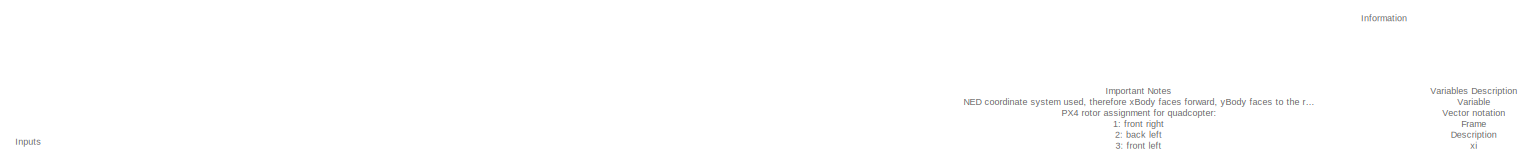
[diagram: root canvas - part 1/6, top center region]
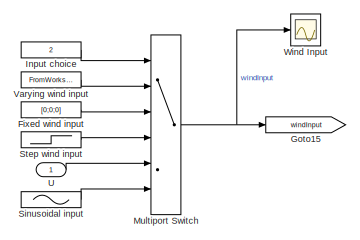
[diagram: root canvas - part 2/6, top left region]
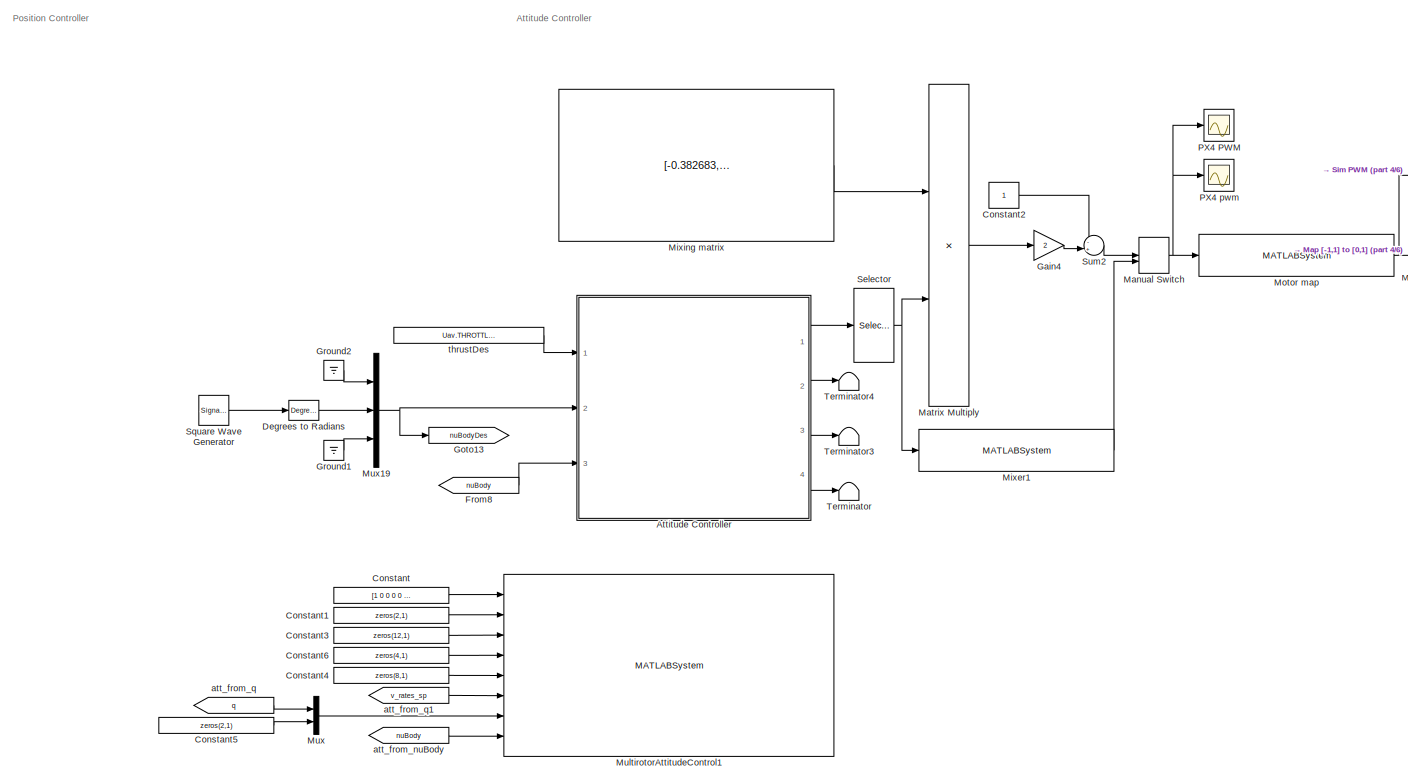
[diagram: root canvas - part 3/6, middle left region]
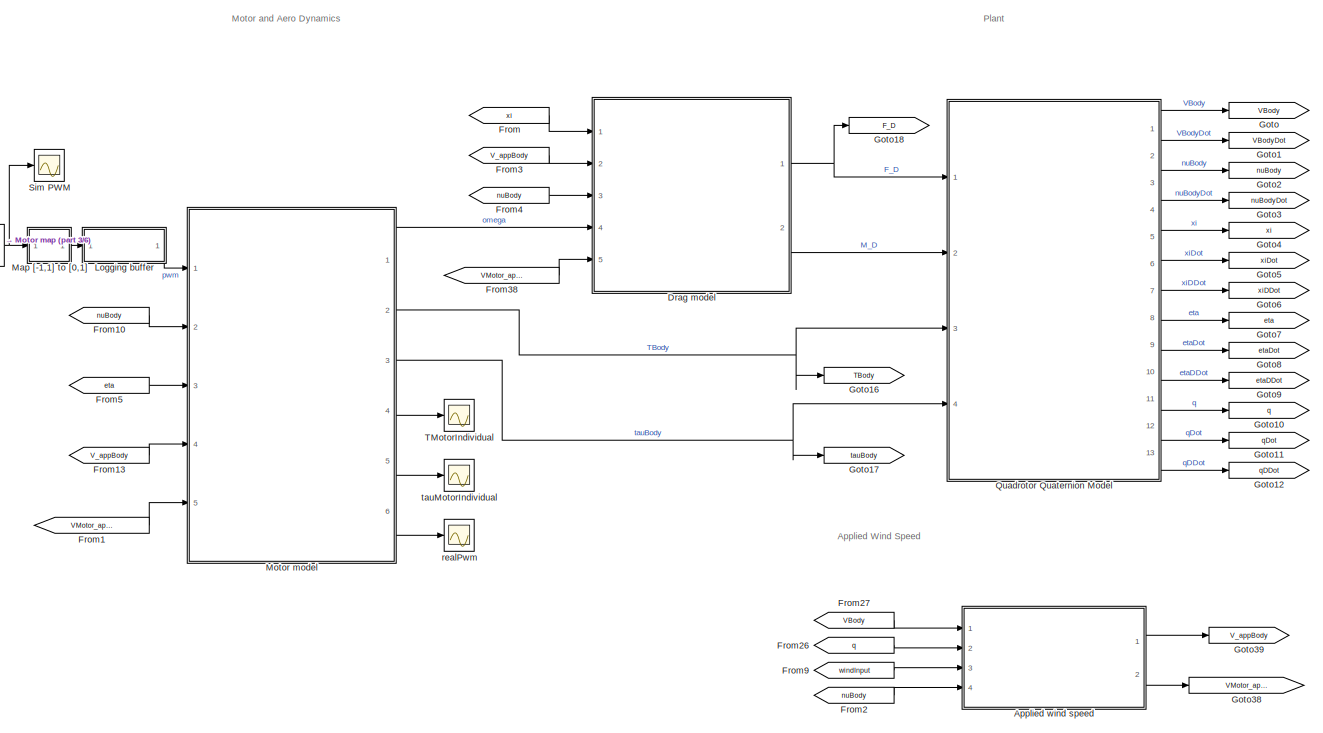
[diagram: root canvas - part 4/6, middle right region]
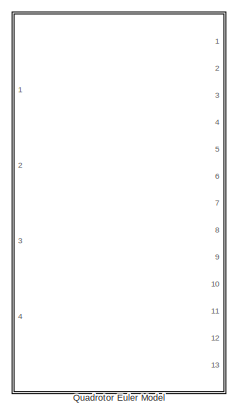
[diagram: root canvas - part 5/6, middle right region]
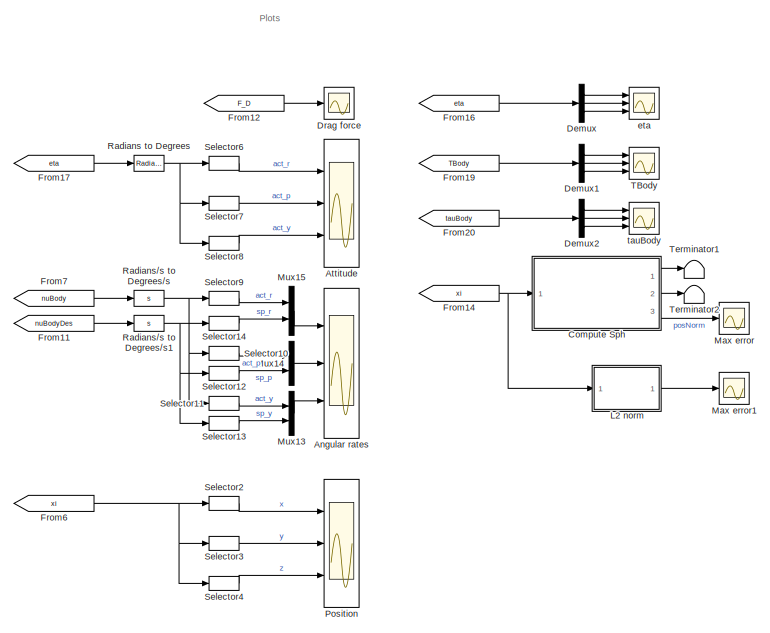
[diagram: root canvas - part 6/6, bottom center region]
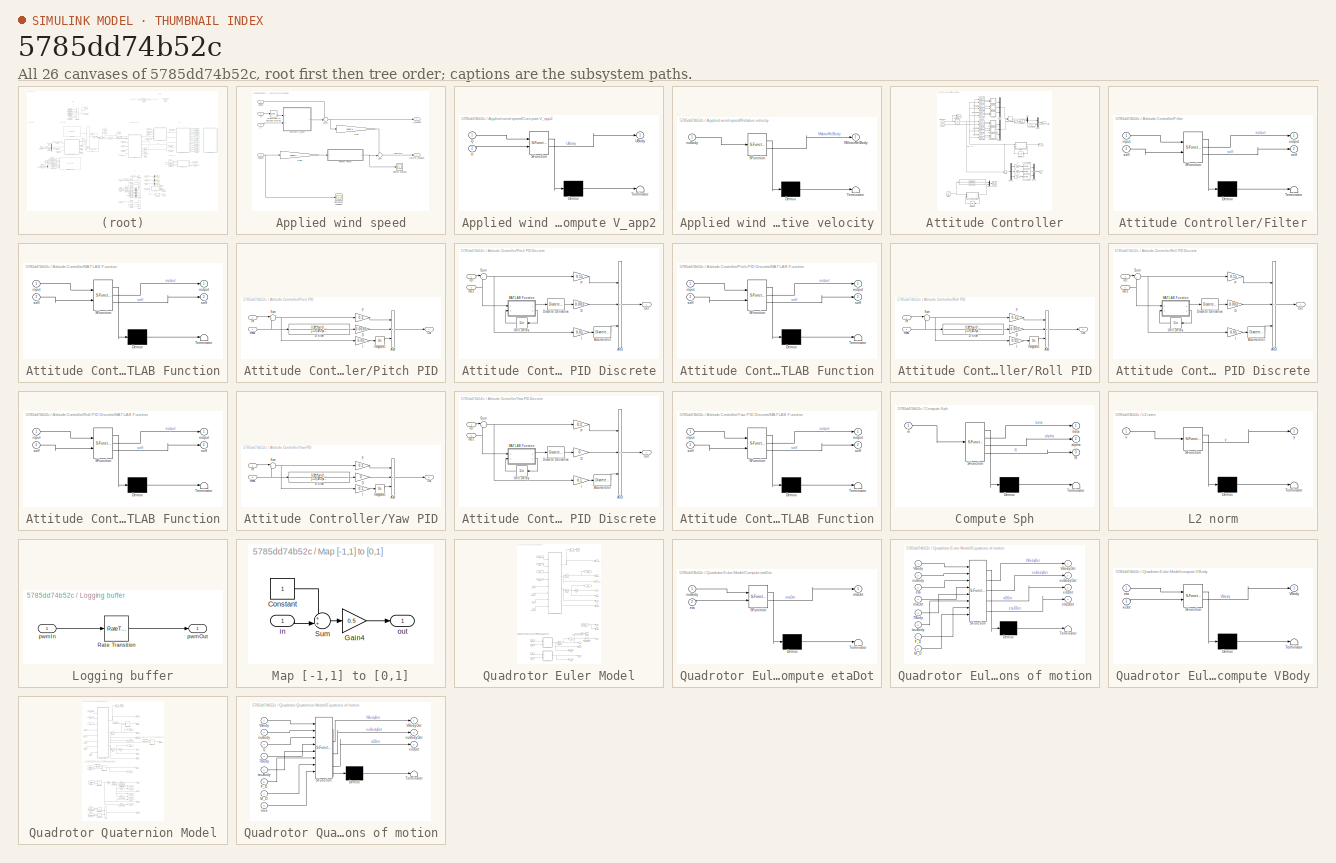
[diagram: thumbnail index - all 26 canvases of the model, root first then tree order]
MODEL slx_5785dd74b52c
KIND model
CONFIG AbsTol = auto
CONFIG EnableMultiTasking = on
CONFIG FixedStep = auto
CONFIG MaxStep = Simulation.TS_MAX
CONFIG MinStep = auto
CONFIG PreLoadFcn = % InitializeParameters;
CONFIG RelTol = 1e-3
CONFIG SampleTimeConstraint = Unconstrained
CONFIG SolverName = VariableStepAuto
CONFIG StartTime = 0.0
CONFIG StopTime = Simulation.T_END
BLOCK [Scope] Angular rates
  Floating = off
  NumInputPorts = 3
  Ports = [3]
  ScopeSpecificationString = Simulink.scopes.TimeScopeBlockCfg('CurrentConfiguration', extmgr.ConfigurationSet(extmgr.Configuration('Core','General UI',true),extmgr.Configuration('Core','Source UI',true),extmgr.Configuration('Sources','WiredSimulink',true,'DataLoggingVariableName','ScopeData1'),extmgr.Configuration('Visuals','Time Domain',true,'SerializedDisplays',{struct('MinYLimReal','-0.000000000000045','MaxYLimReal','0.00...<+2861ch>
BLOCK [SubSystem] Applied wind speed
  Ports = [4, 2]
  RequestExecContextInheritance = off
BLOCK [SubSystem] Applied wind speed/Compute V_app2
  ErrorFcn = Stateflow.Translate.translate
  PermitHierarchicalResolution = ExplicitOnly
  Ports = [2, 1]
  RequestExecContextInheritance = off
  SFBlockType = MATLAB Function
  TreatAsAtomicUnit = on
BLOCK [Demux] Applied wind speed/Compute V_app2/ Demux 
  Outputs = 1
  Ports = [1, 1]
BLOCK [S-Function] Applied wind speed/Compute V_app2/ SFunction 
  EnableBusSupport = on
  FunctionName = sf_sfun
  PortCounts = [2 2]
  Ports = [2, 2]
  SFcnIsStateOwnerBlock = off
  SFunctionDeploymentMode = off
  Tag = Stateflow S-Function 5
BLOCK [Terminator] Applied wind speed/Compute V_app2/ Terminator 
BLOCK [Inport] Applied wind speed/Compute V_app2/Q
BLOCK [Inport] Applied wind speed/Compute V_app2/U
  Port = 2
BLOCK [Outport] Applied wind speed/Compute V_app2/UBody
  VectorParamsAs1DForOutWhenUnconnected = off
BLOCK [Gain] Applied wind speed/Gain
  Gain = ones(1,Uav.N_ROTORS)
  Multiplication = Matrix(u*K)
BLOCK [Gain] Applied wind speed/Gain1
  Gain = ones(1,Uav.N_ROTORS)
  Multiplication = Matrix(u*K)
BLOCK [Reference] Applied wind speed/Quaternion to Rotation Matrix1  REF=QuaternionLibrary/Quaternion
to Rotation Matrix
  Ports = [1, 1]
  SourceBlock = QuaternionLibrary/Quaternion\nto Rotation Matrix
BLOCK [Scope] Applied wind speed/Relative velocities
  Floating = off
  NumInputPorts = 1
  Ports = [1]
  ScopeSpecificationString = Simulink.scopes.TimeScopeBlockCfg('CurrentConfiguration', extmgr.ConfigurationSet(extmgr.Configuration('Core','General UI',true),extmgr.Configuration('Core','Source UI',true),extmgr.Configuration('Sources','WiredSimulink',true,'DataLoggingVariableName','ScopeData7'),extmgr.Configuration('Visuals','Time Domain',true,'SerializedDisplays',{struct('MinYLimReal','-0.10082','MaxYLimReal','0.10082','YLab...<+1971ch>
BLOCK [SubSystem] Applied wind speed/Relative velocity
  ErrorFcn = Stateflow.Translate.translate
  PermitHierarchicalResolution = ExplicitOnly
  Ports = [1, 1]
  RequestExecContextInheritance = off
  SFBlockType = MATLAB Function
  TreatAsAtomicUnit = on
BLOCK [Demux] Applied wind speed/Relative velocity/ Demux 
  Outputs = 1
  Ports = [1, 1]
BLOCK [S-Function] Applied wind speed/Relative velocity/ SFunction 
  EnableBusSupport = on
  FunctionName = sf_sfun
  Parameters = Uav
  PortCounts = [1 2]
  Ports = [1, 2]
  SFcnIsStateOwnerBlock = off
  SFunctionDeploymentMode = off
  Tag = Stateflow S-Function 4
BLOCK [Terminator] Applied wind speed/Relative velocity/ Terminator 
BLOCK [Outport] Applied wind speed/Relative velocity/VMotorRelBody
  VectorParamsAs1DForOutWhenUnconnected = off
BLOCK [Inport] Applied wind speed/Relative velocity/nuBody
BLOCK [Scope] Applied wind speed/Rotational velocities
  Floating = off
  NumInputPorts = 1
  Ports = [1]
  ScopeSpecificationString = Simulink.scopes.TimeScopeBlockCfg('CurrentConfiguration', extmgr.ConfigurationSet(extmgr.Configuration('Core','General UI',true),extmgr.Configuration('Core','Source UI',true),extmgr.Configuration('Sources','WiredSimulink',true,'DataLoggingVariableName','ScopeData8'),extmgr.Configuration('Visuals','Time Domain',true,'SerializedDisplays',{struct('MinYLimReal','-0.22625','MaxYLimReal','0.41313','YLab...<+1461ch>
BLOCK [Sum] Applied wind speed/Sum
  Inputs = ++|
  Ports = [2, 1]
BLOCK [Sum] Applied wind speed/Sum1
  Inputs = ++|
  Ports = [2, 1]
BLOCK [Inport] Applied wind speed/U
  Port = 3
  Unit = m/s
BLOCK [Inport] Applied wind speed/VBody
  Unit = m/s
BLOCK [Outport] Applied wind speed/VMotor_appBody
  Port = 2
  PortDimensions = [3,Uav.N_ROTORS]
  Unit = m/s
  VectorParamsAs1DForOutWhenUnconnected = off
BLOCK [Outport] Applied wind speed/V_appBody
  Unit = m/s
  VectorParamsAs1DForOutWhenUnconnected = off
BLOCK [Inport] Applied wind speed/nuBody
  Port = 4
  Unit = rad/s
BLOCK [Inport] Applied wind speed/q
  Port = 2
BLOCK [Scope] Attitude
  Floating = off
  NumInputPorts = 3
  Ports = [3]
  ScopeSpecificationString = Simulink.scopes.TimeScopeBlockCfg('CurrentConfiguration', extmgr.ConfigurationSet(extmgr.Configuration('Core','General UI',true),extmgr.Configuration('Core','Source UI',true),extmgr.Configuration('Sources','WiredSimulink',true,'DataLoggingVariableName','ScopeData3'),extmgr.Configuration('Visuals','Time Domain',true,'SerializedDisplays',{struct('MinYLimReal','-0.000000000000021','MaxYLimReal','0.00...<+2859ch>
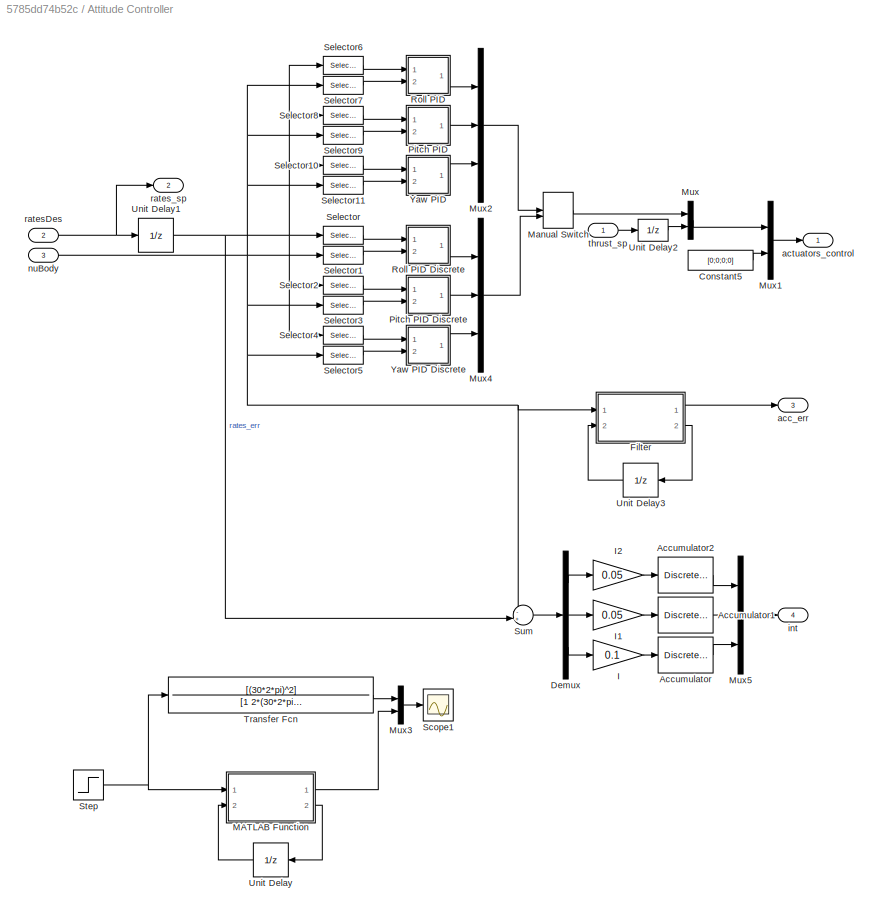
BLOCK [SubSystem] Attitude Controller
  Ports = [3, 4]
  RequestExecContextInheritance = off
BLOCK [DiscreteIntegrator] Attitude Controller/Accumulator
  ICPrevOutput = DiscIntNeverNeededParam
  ICPrevScaledInput = DiscIntNeverNeededParam
  InitialConditionSetting = Auto
  IntegratorMethod = Integration: Backward Euler
  LimitOutput = on
  LowerSaturationLimit = -0.3
  Ports = [1, 1]
  SampleTime = 1/250
  UpperSaturationLimit = 0.3
BLOCK [DiscreteIntegrator] Attitude Controller/Accumulator1
  ICPrevOutput = DiscIntNeverNeededParam
  ICPrevScaledInput = DiscIntNeverNeededParam
  InitialConditionSetting = Auto
  IntegratorMethod = Integration: Backward Euler
  LimitOutput = on
  LowerSaturationLimit = -0.3
  Ports = [1, 1]
  SampleTime = 1/250
  UpperSaturationLimit = 0.3
BLOCK [DiscreteIntegrator] Attitude Controller/Accumulator2
  ICPrevOutput = DiscIntNeverNeededParam
  ICPrevScaledInput = DiscIntNeverNeededParam
  InitialConditionSetting = Auto
  IntegratorMethod = Integration: Backward Euler
  LimitOutput = on
  LowerSaturationLimit = -0.3
  Ports = [1, 1]
  SampleTime = 1/250
  UpperSaturationLimit = 0.3
BLOCK [Constant] Attitude Controller/Constant5
  Value = [0;0;0;0]
BLOCK [Demux] Attitude Controller/Demux
  Outputs = 3
  Ports = [1, 3]
BLOCK [SubSystem] Attitude Controller/Filter
  ErrorFcn = Stateflow.Translate.translate
  PermitHierarchicalResolution = ExplicitOnly
  Ports = [2, 2]
  RequestExecContextInheritance = off
  SFBlockType = MATLAB Function
  SystemSampleTime = 1/250
  TreatAsAtomicUnit = on
BLOCK [Demux] Attitude Controller/Filter/ Demux 
  Outputs = 1
  Ports = [1, 1]
BLOCK [S-Function] Attitude Controller/Filter/ SFunction 
  EnableBusSupport = on
  FunctionName = sf_sfun
  PortCounts = [2 3]
  Ports = [2, 3]
  SFcnIsStateOwnerBlock = off
  SFunctionDeploymentMode = off
  Tag = Stateflow S-Function 6
BLOCK [Terminator] Attitude Controller/Filter/ Terminator 
BLOCK [Inport] Attitude Controller/Filter/input
BLOCK [Outport] Attitude Controller/Filter/output
  VectorParamsAs1DForOutWhenUnconnected = off
BLOCK [Outport] Attitude Controller/Filter/self
  Port = 2
  VectorParamsAs1DForOutWhenUnconnected = off
BLOCK [Inport] Attitude Controller/Filter/self 
  Port = 2
BLOCK [Gain] Attitude Controller/I
  Gain = 0.1
BLOCK [Gain] Attitude Controller/I1
  Gain = 0.05
BLOCK [Gain] Attitude Controller/I2
  Gain = 0.05
BLOCK [SubSystem] Attitude Controller/MATLAB Function
  ErrorFcn = Stateflow.Translate.translate
  PermitHierarchicalResolution = ExplicitOnly
  Ports = [2, 2]
  RequestExecContextInheritance = off
  SFBlockType = MATLAB Function
  SystemSampleTime = 1/250
  TreatAsAtomicUnit = on
BLOCK [Demux] Attitude Controller/MATLAB Function/ Demux 
  Outputs = 1
  Ports = [1, 1]
BLOCK [S-Function] Attitude Controller/MATLAB Function/ SFunction 
  EnableBusSupport = on
  FunctionName = sf_sfun
  PortCounts = [2 3]
  Ports = [2, 3]
  SFcnIsStateOwnerBlock = off
  SFunctionDeploymentMode = off
  Tag = Stateflow S-Function 7
BLOCK [Terminator] Attitude Controller/MATLAB Function/ Terminator 
BLOCK [Inport] Attitude Controller/MATLAB Function/input
BLOCK [Outport] Attitude Controller/MATLAB Function/output
  VectorParamsAs1DForOutWhenUnconnected = off
BLOCK [Outport] Attitude Controller/MATLAB Function/self
  Port = 2
  VectorParamsAs1DForOutWhenUnconnected = off
BLOCK [Inport] Attitude Controller/MATLAB Function/self 
  Port = 2
BLOCK [ManualSwitch] Attitude Controller/Manual Switch
BLOCK [Mux] Attitude Controller/Mux
  DisplayOption = bar
  Inputs = 2
  Ports = [2, 1]
BLOCK [Mux] Attitude Controller/Mux1
  DisplayOption = bar
  Inputs = 2
  Ports = [2, 1]
BLOCK [Mux] Attitude Controller/Mux2
  DisplayOption = bar
  Inputs = 3
  Ports = [3, 1]
BLOCK [Mux] Attitude Controller/Mux3
  DisplayOption = bar
  Inputs = 2
  Ports = [2, 1]
BLOCK [Mux] Attitude Controller/Mux4
  DisplayOption = bar
  Inputs = 3
  Ports = [3, 1]
BLOCK [Mux] Attitude Controller/Mux5
  DisplayOption = bar
  Inputs = 3
  Ports = [3, 1]
BLOCK [SubSystem] Attitude Controller/Pitch PID
  Ports = [2, 1]
  RequestExecContextInheritance = off
BLOCK [SubSystem] Attitude Controller/Pitch PID Discrete
  Ports = [2, 1]
  RequestExecContextInheritance = off
BLOCK [DiscreteIntegrator] Attitude Controller/Pitch PID Discrete/Accumulator
  ICPrevOutput = DiscIntNeverNeededParam
  ICPrevScaledInput = DiscIntNeverNeededParam
  InitialConditionSetting = Auto
  LimitOutput = on
  LowerSaturationLimit = -0.3
  Ports = [1, 1]
  SampleTime = 1/250
  UpperSaturationLimit = 0.3
BLOCK [Sum] Attitude Controller/Pitch PID Discrete/Add
  IconShape = rectangular
  Inputs = +-+
  Ports = [3, 1]
BLOCK [Gain] Attitude Controller/Pitch PID Discrete/D
  Gain = 0.003
BLOCK [Reference] Attitude Controller/Pitch PID Discrete/Discrete Derivative  REF=simulink/Discrete/Discrete Derivative
  Ports = [1, 1]
  SourceBlock = simulink/Discrete/Discrete Derivative
  SourceProductBaseCode = SL
  SourceType = Discrete Derivative
BLOCK [Gain] Attitude Controller/Pitch PID Discrete/I
  Gain = 0.05
BLOCK [SubSystem] Attitude Controller/Pitch PID Discrete/MATLAB Function
  ErrorFcn = Stateflow.Translate.translate
  PermitHierarchicalResolution = ExplicitOnly
  Ports = [2, 2]
  RequestExecContextInheritance = off
  SFBlockType = MATLAB Function
  SystemSampleTime = 1/250
  TreatAsAtomicUnit = on
BLOCK [Demux] Attitude Controller/Pitch PID Discrete/MATLAB Function/ Demux 
  Outputs = 1
  Ports = [1, 1]
BLOCK [S-Function] Attitude Controller/Pitch PID Discrete/MATLAB Function/ SFunction 
  EnableBusSupport = on
  FunctionName = sf_sfun
  PortCounts = [2 3]
  Ports = [2, 3]
  SFcnIsStateOwnerBlock = off
  SFunctionDeploymentMode = off
  Tag = Stateflow S-Function 13
BLOCK [Terminator] Attitude Controller/Pitch PID Discrete/MATLAB Function/ Terminator 
BLOCK [Inport] Attitude Controller/Pitch PID Discrete/MATLAB Function/input
BLOCK [Outport] Attitude Controller/Pitch PID Discrete/MATLAB Function/output
  VectorParamsAs1DForOutWhenUnconnected = off
BLOCK [Outport] Attitude Controller/Pitch PID Discrete/MATLAB Function/self
  Port = 2
  VectorParamsAs1DForOutWhenUnconnected = off
BLOCK [Inport] Attitude Controller/Pitch PID Discrete/MATLAB Function/self 
  Port = 2
BLOCK [Outport] Attitude Controller/Pitch PID Discrete/Out
  SampleTime = 1/250
  VectorParamsAs1DForOutWhenUnconnected = off
BLOCK [Gain] Attitude Controller/Pitch PID Discrete/P
  Gain = 0.15
BLOCK [Sum] Attitude Controller/Pitch PID Discrete/Sum
  Inputs = |+-
  Ports = [2, 1]
BLOCK [UnitDelay] Attitude Controller/Pitch PID Discrete/Unit Delay
  HasFrameUpgradeWarning = on
  InitialCondition = zeros(9,1)
  SampleTime = 1/250
BLOCK [Inport] Attitude Controller/Pitch PID Discrete/mes
  Port = 2
  SampleTime = 1/250
BLOCK [Inport] Attitude Controller/Pitch PID Discrete/ref
  SampleTime = 1/250
BLOCK [Sum] Attitude Controller/Pitch PID/Add
  IconShape = rectangular
  Inputs = +-+
  Ports = [3, 1]
BLOCK [Gain] Attitude Controller/Pitch PID/D
  Gain = 0.0030
BLOCK [TransferFcn] Attitude Controller/Pitch PID/D filter
  Denominator = [1 2*(30*2*pi)*0.68  (30*2*pi)^2]
  Numerator = [(30*2*pi)^2 0]
BLOCK [Gain] Attitude Controller/Pitch PID/I
  Gain = 0.05
BLOCK [Integrator] Attitude Controller/Pitch PID/Integrator1
  LimitOutput = on
  LowerSaturationLimit = -0.3
  Ports = [1, 1]
  UpperSaturationLimit = 0.3
BLOCK [Outport] Attitude Controller/Pitch PID/Out
  VectorParamsAs1DForOutWhenUnconnected = off
BLOCK [Gain] Attitude Controller/Pitch PID/P
  Gain = 0.3
BLOCK [Sum] Attitude Controller/Pitch PID/Sum
  Inputs = |+-
  Ports = [2, 1]
BLOCK [Inport] Attitude Controller/Pitch PID/meas
  Port = 2
BLOCK [Inport] Attitude Controller/Pitch PID/ref
BLOCK [SubSystem] Attitude Controller/Roll PID
  Ports = [2, 1]
  RequestExecContextInheritance = off
BLOCK [SubSystem] Attitude Controller/Roll PID Discrete
  Ports = [2, 1]
  RequestExecContextInheritance = off
BLOCK [DiscreteIntegrator] Attitude Controller/Roll PID Discrete/Accumulator
  ICPrevOutput = DiscIntNeverNeededParam
  ICPrevScaledInput = DiscIntNeverNeededParam
  InitialConditionSetting = Auto
  LimitOutput = on
  LowerSaturationLimit = -0.3
  Ports = [1, 1]
  SampleTime = 1/250
  UpperSaturationLimit = 0.3
BLOCK [Sum] Attitude Controller/Roll PID Discrete/Add
  IconShape = rectangular
  Inputs = +-+
  Ports = [3, 1]
BLOCK [Gain] Attitude Controller/Roll PID Discrete/D
  Gain = 0.003
BLOCK [Reference] Attitude Controller/Roll PID Discrete/Discrete Derivative  REF=simulink/Discrete/Discrete Derivative
  Ports = [1, 1]
  SourceBlock = simulink/Discrete/Discrete Derivative
  SourceProductBaseCode = SL
  SourceType = Discrete Derivative
BLOCK [Gain] Attitude Controller/Roll PID Discrete/I
  Gain = 0.05
BLOCK [SubSystem] Attitude Controller/Roll PID Discrete/MATLAB Function
  ErrorFcn = Stateflow.Translate.translate
  PermitHierarchicalResolution = ExplicitOnly
  Ports = [2, 2]
  RequestExecContextInheritance = off
  SFBlockType = MATLAB Function
  SystemSampleTime = 1/250
  TreatAsAtomicUnit = on
BLOCK [Demux] Attitude Controller/Roll PID Discrete/MATLAB Function/ Demux 
  Outputs = 1
  Ports = [1, 1]
BLOCK [S-Function] Attitude Controller/Roll PID Discrete/MATLAB Function/ SFunction 
  EnableBusSupport = on
  FunctionName = sf_sfun
  PortCounts = [2 3]
  Ports = [2, 3]
  SFcnIsStateOwnerBlock = off
  SFunctionDeploymentMode = off
  Tag = Stateflow S-Function 22
BLOCK [Terminator] Attitude Controller/Roll PID Discrete/MATLAB Function/ Terminator 
BLOCK [Inport] Attitude Controller/Roll PID Discrete/MATLAB Function/input
BLOCK [Outport] Attitude Controller/Roll PID Discrete/MATLAB Function/output
  VectorParamsAs1DForOutWhenUnconnected = off
BLOCK [Outport] Attitude Controller/Roll PID Discrete/MATLAB Function/self
  Port = 2
  VectorParamsAs1DForOutWhenUnconnected = off
BLOCK [Inport] Attitude Controller/Roll PID Discrete/MATLAB Function/self 
  Port = 2
BLOCK [Outport] Attitude Controller/Roll PID Discrete/Out
  SampleTime = 1/250
  VectorParamsAs1DForOutWhenUnconnected = off
BLOCK [Gain] Attitude Controller/Roll PID Discrete/P
  Gain = 0.15
BLOCK [Sum] Attitude Controller/Roll PID Discrete/Sum
  Inputs = |+-
  Ports = [2, 1]
BLOCK [UnitDelay] Attitude Controller/Roll PID Discrete/Unit Delay
  HasFrameUpgradeWarning = on
  InitialCondition = zeros(9,1)
  SampleTime = 1/250
BLOCK [Inport] Attitude Controller/Roll PID Discrete/mes
  Port = 2
  SampleTime = 1/250
BLOCK [Inport] Attitude Controller/Roll PID Discrete/ref
  SampleTime = 1/250
BLOCK [Sum] Attitude Controller/Roll PID/Add
  IconShape = rectangular
  Inputs = +-+
  Ports = [3, 1]
BLOCK [Gain] Attitude Controller/Roll PID/D
  Gain = 0.003
BLOCK [TransferFcn] Attitude Controller/Roll PID/D filter
  Denominator = [1 2*(30*2*pi)*0.68  (30*2*pi)^2]
  Numerator = [(30*2*pi)^2 0]
BLOCK [Gain] Attitude Controller/Roll PID/I
  Gain = 0.05
BLOCK [Integrator] Attitude Controller/Roll PID/Integrator1
  LimitOutput = on
  LowerSaturationLimit = -0.3
  Ports = [1, 1]
  UpperSaturationLimit = 0.3
BLOCK [Outport] Attitude Controller/Roll PID/Out
  VectorParamsAs1DForOutWhenUnconnected = off
BLOCK [Gain] Attitude Controller/Roll PID/P
  Gain = 0.15
BLOCK [Sum] Attitude Controller/Roll PID/Sum
  Inputs = |+-
  Ports = [2, 1]
BLOCK [Inport] Attitude Controller/Roll PID/meas
  Port = 2
BLOCK [Inport] Attitude Controller/Roll PID/ref
BLOCK [Scope] Attitude Controller/Scope1
  Floating = off
  NumInputPorts = 1
  Ports = [1]
  ScopeSpecificationString = Simulink.scopes.TimeScopeBlockCfg('CurrentConfiguration', extmgr.ConfigurationSet(extmgr.Configuration('Core','General UI',true),extmgr.Configuration('Core','Source UI',true),extmgr.Configuration('Sources','WiredSimulink',true,'DataLoggingVariableName','ScopeData1'),extmgr.Configuration('Visuals','Time Domain',true,'SerializedDisplays',{struct('MinYLimReal','0.98536','MaxYLimReal','1.06478','YLabe...<+1524ch>
BLOCK [Selector] Attitude Controller/Selector
  IndexOptions = Index vector (dialog)
  Indices = 1
  InputPortWidth = 3
  OutputSizes = 1
  Ports = [1, 1]
BLOCK [Selector] Attitude Controller/Selector1
  IndexOptions = Index vector (dialog)
  Indices = 1
  InputPortWidth = 3
  OutputSizes = 1
  Ports = [1, 1]
BLOCK [Selector] Attitude Controller/Selector10
  IndexOptions = Index vector (dialog)
  Indices = 3
  InputPortWidth = 3
  OutputSizes = 1
  Ports = [1, 1]
BLOCK [Selector] Attitude Controller/Selector11
  IndexOptions = Index vector (dialog)
  Indices = 3
  InputPortWidth = 3
  OutputSizes = 1
  Ports = [1, 1]
BLOCK [Selector] Attitude Controller/Selector2
  IndexOptions = Index vector (dialog)
  Indices = 2
  InputPortWidth = 3
  OutputSizes = 1
  Ports = [1, 1]
BLOCK [Selector] Attitude Controller/Selector3
  IndexOptions = Index vector (dialog)
  Indices = 2
  InputPortWidth = 3
  OutputSizes = 1
  Ports = [1, 1]
BLOCK [Selector] Attitude Controller/Selector4
  IndexOptions = Index vector (dialog)
  Indices = 3
  InputPortWidth = 3
  OutputSizes = 1
  Ports = [1, 1]
BLOCK [Selector] Attitude Controller/Selector5
  IndexOptions = Index vector (dialog)
  Indices = 3
  InputPortWidth = 3
  OutputSizes = 1
  Ports = [1, 1]
BLOCK [Selector] Attitude Controller/Selector6
  IndexOptions = Index vector (dialog)
  Indices = 1
  InputPortWidth = 3
  OutputSizes = 1
  Ports = [1, 1]
BLOCK [Selector] Attitude Controller/Selector7
  IndexOptions = Index vector (dialog)
  Indices = 1
  InputPortWidth = 3
  OutputSizes = 1
  Ports = [1, 1]
BLOCK [Selector] Attitude Controller/Selector8
  IndexOptions = Index vector (dialog)
  Indices = 2
  InputPortWidth = 3
  OutputSizes = 1
  Ports = [1, 1]
BLOCK [Selector] Attitude Controller/Selector9
  IndexOptions = Index vector (dialog)
  Indices = 2
  InputPortWidth = 3
  OutputSizes = 1
  Ports = [1, 1]
BLOCK [Step] Attitude Controller/Step
  SampleTime = 0
  Time = 0.5
BLOCK [Sum] Attitude Controller/Sum
  Inputs = -+|
  Ports = [2, 1]
BLOCK [TransferFcn] Attitude Controller/Transfer Fcn
  Denominator = [1 2*(30*2*pi)*0.68  (30*2*pi)^2]
  Numerator = [(30*2*pi)^2]
BLOCK [UnitDelay] Attitude Controller/Unit Delay
  HasFrameUpgradeWarning = on
  InitialCondition = zeros(13,1)
  SampleTime = 1/250
BLOCK [UnitDelay] Attitude Controller/Unit Delay1
  HasFrameUpgradeWarning = on
  SampleTime = 1/250
BLOCK [UnitDelay] Attitude Controller/Unit Delay2
  HasFrameUpgradeWarning = on
  SampleTime = 1/250
BLOCK [UnitDelay] Attitude Controller/Unit Delay3
  HasFrameUpgradeWarning = on
  InitialCondition = zeros(13,1)
  SampleTime = 1/250
BLOCK [SubSystem] Attitude Controller/Yaw PID
  Ports = [2, 1]
  RequestExecContextInheritance = off
BLOCK [SubSystem] Attitude Controller/Yaw PID Discrete
  Ports = [2, 1]
  RequestExecContextInheritance = off
BLOCK [DiscreteIntegrator] Attitude Controller/Yaw PID Discrete/Accumulator
  ICPrevOutput = DiscIntNeverNeededParam
  ICPrevScaledInput = DiscIntNeverNeededParam
  InitialConditionSetting = Auto
  LimitOutput = on
  LowerSaturationLimit = -0.3
  Ports = [1, 1]
  SampleTime = 1/250
  UpperSaturationLimit = 0.3
BLOCK [Sum] Attitude Controller/Yaw PID Discrete/Add
  IconShape = rectangular
  Inputs = +-+
  Ports = [3, 1]
BLOCK [Gain] Attitude Controller/Yaw PID Discrete/D
  Gain = 0
BLOCK [Reference] Attitude Controller/Yaw PID Discrete/Discrete Derivative  REF=simulink/Discrete/Discrete Derivative
  Ports = [1, 1]
  SourceBlock = simulink/Discrete/Discrete Derivative
  SourceProductBaseCode = SL
  SourceType = Discrete Derivative
BLOCK [Gain] Attitude Controller/Yaw PID Discrete/I
  Gain = 0.1
BLOCK [SubSystem] Attitude Controller/Yaw PID Discrete/MATLAB Function
  ErrorFcn = Stateflow.Translate.translate
  PermitHierarchicalResolution = ExplicitOnly
  Ports = [2, 2]
  RequestExecContextInheritance = off
  SFBlockType = MATLAB Function
  SystemSampleTime = 1/250
  TreatAsAtomicUnit = on
BLOCK [Demux] Attitude Controller/Yaw PID Discrete/MATLAB Function/ Demux 
  Outputs = 1
  Ports = [1, 1]
BLOCK [S-Function] Attitude Controller/Yaw PID Discrete/MATLAB Function/ SFunction 
  EnableBusSupport = on
  FunctionName = sf_sfun
  PortCounts = [2 3]
  Ports = [2, 3]
  SFcnIsStateOwnerBlock = off
  SFunctionDeploymentMode = off
  Tag = Stateflow S-Function 23
BLOCK [Terminator] Attitude Controller/Yaw PID Discrete/MATLAB Function/ Terminator 
BLOCK [Inport] Attitude Controller/Yaw PID Discrete/MATLAB Function/input
BLOCK [Outport] Attitude Controller/Yaw PID Discrete/MATLAB Function/output
  VectorParamsAs1DForOutWhenUnconnected = off
BLOCK [Outport] Attitude Controller/Yaw PID Discrete/MATLAB Function/self
  Port = 2
  VectorParamsAs1DForOutWhenUnconnected = off
BLOCK [Inport] Attitude Controller/Yaw PID Discrete/MATLAB Function/self 
  Port = 2
BLOCK [Outport] Attitude Controller/Yaw PID Discrete/Out
  SampleTime = 1/250
  VectorParamsAs1DForOutWhenUnconnected = off
BLOCK [Gain] Attitude Controller/Yaw PID Discrete/P
  Gain = 0.2
BLOCK [Sum] Attitude Controller/Yaw PID Discrete/Sum
  Inputs = |+-
  Ports = [2, 1]
BLOCK [UnitDelay] Attitude Controller/Yaw PID Discrete/Unit Delay
  HasFrameUpgradeWarning = on
  InitialCondition = zeros(9,1)
  SampleTime = 1/250
BLOCK [Inport] Attitude Controller/Yaw PID Discrete/mes
  Port = 2
  SampleTime = 1/250
BLOCK [Inport] Attitude Controller/Yaw PID Discrete/ref
  SampleTime = 1/250
BLOCK [Sum] Attitude Controller/Yaw PID/Add
  IconShape = rectangular
  Inputs = +-+
  Ports = [3, 1]
BLOCK [Gain] Attitude Controller/Yaw PID/D
  Gain = 0
BLOCK [TransferFcn] Attitude Controller/Yaw PID/D filter
  Denominator = [1 2*(30*2*pi)*0.68  (30*2*pi)^2]
  Numerator = [(30*2*pi)^2 0]
BLOCK [Gain] Attitude Controller/Yaw PID/I
  Gain = 0.1
BLOCK [Integrator] Attitude Controller/Yaw PID/Integrator1
  LimitOutput = on
  LowerSaturationLimit = -0.3
  Ports = [1, 1]
  UpperSaturationLimit = 0.3
BLOCK [Outport] Attitude Controller/Yaw PID/Out
  VectorParamsAs1DForOutWhenUnconnected = off
BLOCK [Gain] Attitude Controller/Yaw PID/P
  Gain = 0.2
BLOCK [Sum] Attitude Controller/Yaw PID/Sum
  Inputs = |+-
  Ports = [2, 1]
BLOCK [Inport] Attitude Controller/Yaw PID/meas
  Port = 2
BLOCK [Inport] Attitude Controller/Yaw PID/ref
BLOCK [Outport] Attitude Controller/acc_err
  Port = 3
  PortDimensions = 3
  VectorParamsAs1DForOutWhenUnconnected = off
BLOCK [Outport] Attitude Controller/actuators_control
  PortDimensions = 8
  VectorParamsAs1DForOutWhenUnconnected = off
BLOCK [Outport] Attitude Controller/int
  Port = 4
  PortDimensions = 3
  VectorParamsAs1DForOutWhenUnconnected = off
BLOCK [Inport] Attitude Controller/nuBody
  Port = 3
  SampleTime = 1/250
BLOCK [Inport] Attitude Controller/ratesDes
  NameLocation = top
  Port = 2
  SampleTime = 1/250
BLOCK [Outport] Attitude Controller/rates_sp
  Port = 2
  VectorParamsAs1DForOutWhenUnconnected = off
BLOCK [Inport] Attitude Controller/thrust_sp
  PortDimensions = 1
BLOCK [SubSystem] Compute Sph
  ErrorFcn = Stateflow.Translate.translate
  PermitHierarchicalResolution = ExplicitOnly
  Ports = [1, 3]
  RequestExecContextInheritance = off
  SFBlockType = MATLAB Function
  TreatAsAtomicUnit = on
BLOCK [Demux] Compute Sph/ Demux 
  Outputs = 1
  Ports = [1, 1]
BLOCK [S-Function] Compute Sph/ SFunction 
  EnableBusSupport = on
  FunctionName = sf_sfun
  PortCounts = [1 4]
  Ports = [1, 4]
  SFcnIsStateOwnerBlock = off
  SFunctionDeploymentMode = off
  Tag = Stateflow S-Function 8
BLOCK [Terminator] Compute Sph/ Terminator 
BLOCK [Outport] Compute Sph/R
  Port = 3
  VectorParamsAs1DForOutWhenUnconnected = off
BLOCK [Outport] Compute Sph/alpha
  Port = 2
  VectorParamsAs1DForOutWhenUnconnected = off
BLOCK [Outport] Compute Sph/beta
  VectorParamsAs1DForOutWhenUnconnected = off
BLOCK [Inport] Compute Sph/in
BLOCK [Constant] Constant
  Commented = on
  Value = [1 0 0 0 0 0 1 0 0 0]'
BLOCK [Constant] Constant1
  Commented = on
  Value = zeros(2,1)
BLOCK [Constant] Constant2
BLOCK [Constant] Constant3
  Commented = on
  Value = zeros(12,1)
BLOCK [Constant] Constant4
  Commented = on
  Value = zeros(8,1)
BLOCK [Constant] Constant5
  Commented = on
  Value = zeros(2,1)
BLOCK [Constant] Constant6
  Commented = on
  Value = zeros(4,1)
BLOCK [Reference] Degrees to Radians  REF=simulink_extras/Transformations/Degrees to
Radians
  Ports = [1, 1]
  SourceBlock = simulink_extras/Transformations/Degrees to\nRadians
  SourceProductBaseCode = SL
  SourceType = DegreesToRadians
BLOCK [Demux] Demux
  Outputs = 3
  Ports = [1, 3]
BLOCK [Demux] Demux1
  Outputs = 3
  Ports = [1, 3]
BLOCK [Demux] Demux2
  Outputs = 3
  Ports = [1, 3]
BLOCK [Scope] Drag force
  Floating = off
  NumInputPorts = 1
  Ports = [1]
  ScopeSpecificationString = Simulink.scopes.TimeScopeBlockCfg('CurrentConfiguration', extmgr.ConfigurationSet(extmgr.Configuration('Core','General UI',true),extmgr.Configuration('Core','Source UI',true),extmgr.Configuration('Sources','WiredSimulink',true,'DataLoggingVariableName','ScopeData1'),extmgr.Configuration('Visuals','Time Domain',true,'SerializedDisplays',{struct('MinYLimReal','-0.87753','MaxYLimReal','0.20159','YLab...<+1430ch>
BLOCK [ModelReference] Drag model
  ModelNameDialog = DragModelAIAAv3
  ModelReferenceVersion = 5.2
  Ports = [5, 2]
BLOCK [Constant] Fixed wind input
  Value = [0;0;0]
BLOCK [From] From
  GotoTag = xi
BLOCK [From] From1
  GotoTag = VMotor_appBody
BLOCK [From] From10
  GotoTag = nuBody
BLOCK [From] From11
  GotoTag = nuBodyDes
BLOCK [From] From12
  GotoTag = F_D
BLOCK [From] From13
  GotoTag = V_appBody
BLOCK [From] From14
  GotoTag = xi
BLOCK [From] From16
  GotoTag = eta
BLOCK [From] From17
  GotoTag = eta
BLOCK [From] From19
  GotoTag = TBody
BLOCK [From] From2
  GotoTag = nuBody
BLOCK [From] From20
  GotoTag = tauBody
BLOCK [From] From26
  GotoTag = q
BLOCK [From] From27
  GotoTag = VBody
BLOCK [From] From3
  GotoTag = V_appBody
BLOCK [From] From38
  GotoTag = VMotor_appBody
BLOCK [From] From4
  GotoTag = nuBody
BLOCK [From] From5
  GotoTag = eta
BLOCK [From] From6
  GotoTag = xi
BLOCK [From] From7
  GotoTag = nuBody
BLOCK [From] From8
  GotoTag = nuBody
BLOCK [From] From9
  GotoTag = windInput
BLOCK [Gain] Gain4
  Gain = 2
BLOCK [Goto] Goto
  GotoTag = VBody
BLOCK [Goto] Goto1
  GotoTag = VBodyDot
BLOCK [Goto] Goto10
  GotoTag = q
BLOCK [Goto] Goto11
  GotoTag = qDot
BLOCK [Goto] Goto12
  GotoTag = qDDot
BLOCK [Goto] Goto13
  GotoTag = nuBodyDes
BLOCK [Goto] Goto15
  GotoTag = windInput
BLOCK [Goto] Goto16
  GotoTag = TBody
BLOCK [Goto] Goto17
  GotoTag = tauBody
BLOCK [Goto] Goto18
  GotoTag = F_D
BLOCK [Goto] Goto2
  GotoTag = nuBody
BLOCK [Goto] Goto3
  GotoTag = nuBodyDot
BLOCK [Goto] Goto38
  GotoTag = VMotor_appBody
BLOCK [Goto] Goto39
  GotoTag = V_appBody
BLOCK [Goto] Goto4
  GotoTag = xi
BLOCK [Goto] Goto5
  GotoTag = xiDot
BLOCK [Goto] Goto6
  GotoTag = xiDDot
BLOCK [Goto] Goto7
  GotoTag = eta
BLOCK [Goto] Goto8
  GotoTag = etaDot
BLOCK [Goto] Goto9
  GotoTag = etaDDot
BLOCK [Ground] Ground1
BLOCK [Ground] Ground2
BLOCK [Constant] Input choice
  Value = 2
BLOCK [SubSystem] L2 norm
  ErrorFcn = Stateflow.Translate.translate
  PermitHierarchicalResolution = ExplicitOnly
  Ports = [1, 1]
  RequestExecContextInheritance = off
  SFBlockType = MATLAB Function
  TreatAsAtomicUnit = on
BLOCK [Demux] L2 norm/ Demux 
  Outputs = 1
  Ports = [1, 1]
BLOCK [S-Function] L2 norm/ SFunction 
  EnableBusSupport = on
  FunctionName = sf_sfun
  PortCounts = [1 2]
  Ports = [1, 2]
  SFcnIsStateOwnerBlock = off
  SFunctionDeploymentMode = off
  Tag = Stateflow S-Function 15
BLOCK [Terminator] L2 norm/ Terminator 
BLOCK [Inport] L2 norm/u
BLOCK [Outport] L2 norm/y
  VectorParamsAs1DForOutWhenUnconnected = off
BLOCK [SubSystem] Logging buffer
  Ports = [1, 1]
  RequestExecContextInheritance = off
BLOCK [RateTransition] Logging buffer/Rate Transition
  Commented = through
  SCDEnableBlockLinearizationSpecification = on
BLOCK [Inport] Logging buffer/pwmIn
BLOCK [Outport] Logging buffer/pwmOut
  VectorParamsAs1DForOutWhenUnconnected = off
BLOCK [ManualSwitch] Manual Switch
BLOCK [SubSystem] Map [-1,1] to [0,1]
  Ports = [1, 1]
  RequestExecContextInheritance = off
BLOCK [Constant] Map [-1,1] to [0,1]/Constant
BLOCK [Gain] Map [-1,1] to [0,1]/Gain4
  Gain = 0.5
BLOCK [Sum] Map [-1,1] to [0,1]/Sum
  Inputs = ++|
  Ports = [2, 1]
BLOCK [Inport] Map [-1,1] to [0,1]/in
BLOCK [Outport] Map [-1,1] to [0,1]/out
  VectorParamsAs1DForOutWhenUnconnected = off
BLOCK [Product] Matrix Multiply
  Multiplication = Matrix(*)
  Ports = [2, 1]
BLOCK [Scope] Max error
  Floating = off
  NumInputPorts = 1
  Ports = [1]
  ScopeSpecificationString = Simulink.scopes.TimeScopeBlockCfg('CurrentConfiguration', extmgr.ConfigurationSet(extmgr.Configuration('Core','General UI',true),extmgr.Configuration('Core','Source UI',true),extmgr.Configuration('Sources','WiredSimulink',true,'DataLoggingVariableName','ScopeData1'),extmgr.Configuration('Visuals','Time Domain',true,'SerializedDisplays',{struct('MinYLimReal','-0.000001','MaxYLimReal','0.000011','YL...<+1447ch>
BLOCK [Scope] Max error1
  Floating = off
  NumInputPorts = 1
  Ports = [1]
  ScopeSpecificationString = Simulink.scopes.TimeScopeBlockCfg('CurrentConfiguration', extmgr.ConfigurationSet(extmgr.Configuration('Core','General UI',true),extmgr.Configuration('Core','Source UI',true),extmgr.Configuration('Sources','WiredSimulink',true,'DataLoggingVariableName','ScopeData1'),extmgr.Configuration('Visuals','Time Domain',true,'SerializedDisplays',{struct('MinYLimReal','-0.03873','MaxYLimReal','0.34858','YLab...<+1449ch>
BLOCK [MATLABSystem] Mixer1
  MaskDisplay = disp(['MULTIROTOR' char(10) 'MIXER' char(10) 'octa_xneg']);\nport_label('input',1,'actuatorsControl');\nport_label('output',1,'px4PWM');
  MaskType = MultirotorMixer
  Ports = [1, 1]
  SimulateUsing = Code generation
  System = MultirotorMixer
  airframeConfig = 6
  outputSatStatus = 0
  useHorThrust = 0
BLOCK [Constant] Mixing matrix
  Value = [-0.382683,  0.923880,  1.000000,  1.000000 ;\n  0.382683, -0.923880,  1.000000,  1.000000 ;\n -0.923880,  0.382683, -1.000000,  1.000000 ;\n -0.382683, -0.923880, -1.000000,  1.000000 ;\n  0.382683,  0.923880, -1.000000,  1.000000 ;\n  0.923880, -0.382683, -1.000000,  1.000000 ;\n  0.923880,  0.382683,  1.000000,  1.000000 ;\n -0.923880, -0.382683,  1.000000,  1.000000 ]
BLOCK [MATLABSystem] Motor map
  MaskDisplay = disp(['MOTOR' char(10) 'MAP' char(10) 'octa_x']);\nport_label('input',1,'px4PWM');\nport_label('output',1,'simPWM');
  MaskType = MotorMap
  Ports = [1, 1]
  SimulateUsing = Code generation
  System = MotorMap
  airframeConfig = 5
BLOCK [ModelReference] Motor model
  ModelNameDialog = MotorModelZJChen
  ModelReferenceVersion = 5.2
  Ports = [5, 6]
BLOCK [MultiPortSwitch] Multiport Switch
  InputSameDT = off
  Inputs = 5
  Ports = [6, 1]
  SaturateOnIntegerOverflow = off
BLOCK [MATLABSystem] MultirotorAttitudeControl1
  Commented = on
  MaskDisplay = disp(['MulticopterAttitudeControl' char(10) '' char(10) 'v1.82']);\nport_label('input',1,'v_control_mode_flags');\nport_label('input',2,'vehicle_land_detected');\nport_label('input',3,'saturation_status');\nport_label('input',4,'manual_control_sp');\nport_label('input',5,'v_att_sp');\nport_label('input',6,'v_rates_sp');\nport_label('input',7,'v_att_in');\nport_label('input',8,'sensor_gyro');\nport_label('o...<+65ch>
  MaskType = MulticopterAttitudeControl
  Ports = [8, 2]
  SimulateUsing = Interpreted execution
  System = MulticopterAttitudeControl
  acro_expo_rp = 0.69
  acro_expo_y = 0.69
  acro_pitch_max = 720
  acro_roll_max = 720
  acro_superexpo_rp = 0.7
  acro_superexpo_y = 0.7
  acro_yaw_max = 540
  airmode = 0
  bat_scale_en = 0
  board_offset_x = 0
  board_offset_y = 0
  board_offset_z = 0
  board_rotation_param = 0
  d_term_cutoff_freq = 30
  loop_update_rate_hz = 250
  man_throttle_min = 0.08
  man_tilt_max_deg = 35
  output_rates = 1
  pitch_p = 6.5
  pitch_rate_d = 0.003
  pitch_rate_ff = 0
  pitch_rate_i = 0.05
  pitch_rate_integ_lim = 0.3
  pitch_rate_max = 220
  pitch_rate_p = 0.15
  rattitude_thres = 0.8
  roll_p = 6.5
  roll_rate_d = 0.003
  roll_rate_ff = 0
  roll_rate_i = 0.05
  roll_rate_integ_lim = 0.3
  roll_rate_max = 220
  roll_rate_p = 0.15
  simple_mode = 0
  throttle_curve = 0
  throttle_hover = 0.5
  throttle_max = 1
  tpa_breakpoint_d = 1
  tpa_breakpoint_i = 1
  tpa_breakpoint_p = 1
  tpa_rate_d = 0
  tpa_rate_i = 0
  tpa_rate_p = 0
  vehicle_status_is_rotary_wing = 1
  vehicle_status_is_vtol = 0
  yaw_auto_max = 45
  yaw_p = 2.8
  yaw_rate_d = 0
  yaw_rate_ff = 0
  yaw_rate_i = 0.1
  yaw_rate_integ_lim = 0.3
  yaw_rate_max = 200
  yaw_rate_p = 0.2
  yaw_rate_scaling = 200
BLOCK [Mux] Mux
  Commented = on
  DisplayOption = bar
  Inputs = 2
  Ports = [2, 1]
BLOCK [Mux] Mux13
  DisplayOption = bar
  Inputs = 2
  Ports = [2, 1]
BLOCK [Mux] Mux14
  DisplayOption = bar
  Inputs = 2
  Ports = [2, 1]
BLOCK [Mux] Mux15
  DisplayOption = bar
  Inputs = 2
  Ports = [2, 1]
BLOCK [Mux] Mux19
  DisplayOption = bar
  Inputs = 3
  Ports = [3, 1]
BLOCK [Scope] PX4 PWM
  Floating = off
  NumInputPorts = 1
  Ports = [1]
  ScopeSpecificationString = Simulink.scopes.TimeScopeBlockCfg('CurrentConfiguration', extmgr.ConfigurationSet(extmgr.Configuration('Core','General UI',true),extmgr.Configuration('Core','Source UI',true),extmgr.Configuration('Sources','WiredSimulink',true,'DataLoggingVariableName','ScopeData2'),extmgr.Configuration('Visuals','Time Domain',true,'SerializedDisplays',{struct('MinYLimReal','-1.19961','MaxYLimReal','0.79653','YLab...<+1573ch>
BLOCK [Scope] PX4 pwm
  Floating = off
  NumInputPorts = 1
  Ports = [1]
  ScopeSpecificationString = Simulink.scopes.TimeScopeBlockCfg('CurrentConfiguration', extmgr.ConfigurationSet(extmgr.Configuration('Core','General UI',true),extmgr.Configuration('Core','Source UI',true),extmgr.Configuration('Sources','WiredSimulink',true,'DataLoggingVariableName','ScopeData1'),extmgr.Configuration('Visuals','Time Domain',true,'SerializedDisplays',{struct('MinYLimReal','-1.4401','MaxYLimReal','1.6597','YLabel...<+2393ch>
BLOCK [Scope] Position
  Floating = off
  NumInputPorts = 3
  Ports = [3]
  ScopeSpecificationString = Simulink.scopes.TimeScopeBlockCfg('CurrentConfiguration', extmgr.ConfigurationSet(extmgr.Configuration('Core','General UI',true),extmgr.Configuration('Core','Source UI',true),extmgr.Configuration('Sources','WiredSimulink',true,'DataLoggingVariableName','ScopeData1'),extmgr.Configuration('Visuals','Time Domain',true,'SerializedDisplays',{struct('MinYLimReal','-8.92374','MaxYLimReal','80.31367','YLa...<+2782ch>
BLOCK [SubSystem] Quadrotor Euler Model
  Commented = on
  Ports = [4, 13]
  RequestExecContextInheritance = off
BLOCK [Scope] Quadrotor Euler Model/Angles
  Floating = off
  NumInputPorts = 1
  Ports = [1]
  ScopeSpecificationString = Simulink.scopes.TimeScopeBlockCfg('CurrentConfiguration', extmgr.ConfigurationSet(extmgr.Configuration('Core','General UI',true),extmgr.Configuration('Core','Source UI',true),extmgr.Configuration('Sources','WiredSimulink',true,'DataLoggingVariableName','ScopeData1','DataLoggingLimitDataPoints',true,'DataLoggingSaveFormat','Array','DataLoggingDecimation','1','DataLoggingDecimateData',true),extmgr.C...<+1596ch>
BLOCK [SubSystem] Quadrotor Euler Model/Compute etaDot
  ErrorFcn = Stateflow.Translate.translate
  PermitHierarchicalResolution = ExplicitOnly
  Ports = [2, 1]
  RequestExecContextInheritance = off
  SFBlockType = MATLAB Function
  TreatAsAtomicUnit = on
BLOCK [Demux] Quadrotor Euler Model/Compute etaDot/ Demux 
  Outputs = 1
  Ports = [1, 1]
BLOCK [S-Function] Quadrotor Euler Model/Compute etaDot/ SFunction 
  EnableBusSupport = on
  FunctionName = sf_sfun
  PortCounts = [2 2]
  Ports = [2, 2]
  SFcnIsStateOwnerBlock = off
  SFunctionDeploymentMode = off
  Tag = Stateflow S-Function 12
BLOCK [Terminator] Quadrotor Euler Model/Compute etaDot/ Terminator 
BLOCK [Inport] Quadrotor Euler Model/Compute etaDot/eta
  Port = 2
BLOCK [Outport] Quadrotor Euler Model/Compute etaDot/etaDot
  VectorParamsAs1DForOutWhenUnconnected = off
BLOCK [Inport] Quadrotor Euler Model/Compute etaDot/nuBody
BLOCK [Constant] Quadrotor Euler Model/Constant
  Value = [0,0,0,0]'
BLOCK [SubSystem] Quadrotor Euler Model/Equations of motion
  ErrorFcn = Stateflow.Translate.translate
  PermitHierarchicalResolution = ExplicitOnly
  Ports = [8, 4]
  RequestExecContextInheritance = off
  SFBlockType = MATLAB Function
  TreatAsAtomicUnit = on
BLOCK [Demux] Quadrotor Euler Model/Equations of motion/ Demux 
  Outputs = 1
  Ports = [1, 1]
BLOCK [S-Function] Quadrotor Euler Model/Equations of motion/ SFunction 
  EnableBusSupport = on
  FunctionName = sf_sfun
  Parameters = Uav
  PortCounts = [8 5]
  Ports = [8, 5]
  SFcnIsStateOwnerBlock = off
  SFunctionDeploymentMode = off
  Tag = Stateflow S-Function 1
BLOCK [Terminator] Quadrotor Euler Model/Equations of motion/ Terminator 
BLOCK [Inport] Quadrotor Euler Model/Equations of motion/F_D
  Port = 7
BLOCK [Inport] Quadrotor Euler Model/Equations of motion/M_D
  Port = 8
BLOCK [Inport] Quadrotor Euler Model/Equations of motion/TBody
  Port = 5
BLOCK [Inport] Quadrotor Euler Model/Equations of motion/VBody
BLOCK [Outport] Quadrotor Euler Model/Equations of motion/VBodyDot
  VectorParamsAs1DForOutWhenUnconnected = off
BLOCK [Inport] Quadrotor Euler Model/Equations of motion/eta
  Port = 3
BLOCK [Outport] Quadrotor Euler Model/Equations of motion/etaDDot
  Port = 4
  VectorParamsAs1DForOutWhenUnconnected = off
BLOCK [Inport] Quadrotor Euler Model/Equations of motion/etaDot
  Port = 4
BLOCK [Inport] Quadrotor Euler Model/Equations of motion/nuBody
  Port = 2
BLOCK [Outport] Quadrotor Euler Model/Equations of motion/nuBodyDot
  Port = 2
  VectorParamsAs1DForOutWhenUnconnected = off
BLOCK [Inport] Quadrotor Euler Model/Equations of motion/tauBody
  Port = 6
BLOCK [Outport] Quadrotor Euler Model/Equations of motion/xiDDot
  Port = 3
  VectorParamsAs1DForOutWhenUnconnected = off
BLOCK [Reference] Quadrotor Euler Model/Euler Angles to Quaternion  REF=QuaternionLibrary/Euler Angles
to Quaternion
  Ports = [1, 1]
  SourceBlock = QuaternionLibrary/Euler Angles\nto Quaternion
BLOCK [Inport] Quadrotor Euler Model/F_DBody
  Unit = N
BLOCK [From] Quadrotor Euler Model/From
  GotoTag = VBody
BLOCK [From] Quadrotor Euler Model/From1
  GotoTag = nuBody
BLOCK [From] Quadrotor Euler Model/From13
  GotoTag = etaDot
BLOCK [From] Quadrotor Euler Model/From3
  GotoTag = eta
BLOCK [From] Quadrotor Euler Model/From4
  GotoTag = eta
BLOCK [From] Quadrotor Euler Model/From5
  GotoTag = eta
BLOCK [From] Quadrotor Euler Model/From6
  GotoTag = nuBody
BLOCK [From] Quadrotor Euler Model/From7
  GotoTag = xiDot
BLOCK [Goto] Quadrotor Euler Model/Goto
  GotoTag = VBody
BLOCK [Goto] Quadrotor Euler Model/Goto1
  GotoTag = nuBody
BLOCK [Goto] Quadrotor Euler Model/Goto2
  GotoTag = eta
BLOCK [Goto] Quadrotor Euler Model/Goto3
  GotoTag = etaDot
BLOCK [Goto] Quadrotor Euler Model/Goto4
  GotoTag = xiDot
BLOCK [Integrator] Quadrotor Euler Model/Integrator5
  ContinuousStateAttributes = 'eta'
  InitialCondition = Initial.ETA
  Ports = [1, 1]
BLOCK [Inport] Quadrotor Euler Model/M_DBody
  Port = 2
  Unit = N*m
BLOCK [Scope] Quadrotor Euler Model/Q
  Floating = off
  NumInputPorts = 1
  Ports = [1]
  ScopeSpecificationString = Simulink.scopes.TimeScopeBlockCfg('CurrentConfiguration', extmgr.ConfigurationSet(extmgr.Configuration('Core','General UI',true),extmgr.Configuration('Core','Source UI',true),extmgr.Configuration('Sources','WiredSimulink',true,'DataLoggingVariableName','ScopeData3','DataLoggingLimitDataPoints',true,'DataLoggingSaveFormat','Array','DataLoggingDecimation','1','DataLoggingDecimateData',true),extmgr.C...<+1517ch>
BLOCK [Reference] Quadrotor Euler Model/Radians to Degrees  REF=simulink_extras/Transformations/Radians
to Degrees
  Ports = [1, 1]
  SourceBlock = simulink_extras/Transformations/Radians\nto Degrees
  SourceProductBaseCode = SL
  SourceType = RadiansToDegrees
BLOCK [Reshape] Quadrotor Euler Model/Reshape
  OutputDimensionality = Column vector (2-D)
  Ports = [1, 1]
BLOCK [Inport] Quadrotor Euler Model/TBody
  Port = 3
  Unit = N
BLOCK [Outport] Quadrotor Euler Model/VBody
  Unit = m/s
  VectorParamsAs1DForOutWhenUnconnected = off
BLOCK [Outport] Quadrotor Euler Model/VBodyDot
  Port = 2
  Unit = m/s^2
  VectorParamsAs1DForOutWhenUnconnected = off
BLOCK [SubSystem] Quadrotor Euler Model/compute VBody
  ErrorFcn = Stateflow.Translate.translate
  PermitHierarchicalResolution = ExplicitOnly
  Ports = [2, 1]
  RequestExecContextInheritance = off
  SFBlockType = MATLAB Function
  TreatAsAtomicUnit = on
BLOCK [Demux] Quadrotor Euler Model/compute VBody/ Demux 
  Outputs = 1
  Ports = [1, 1]
BLOCK [S-Function] Quadrotor Euler Model/compute VBody/ SFunction 
  EnableBusSupport = on
  FunctionName = sf_sfun
  PortCounts = [2 2]
  Ports = [2, 2]
  SFcnIsStateOwnerBlock = off
  SFunctionDeploymentMode = off
  Tag = Stateflow S-Function 14
BLOCK [Terminator] Quadrotor Euler Model/compute VBody/ Terminator 
BLOCK [Outport] Quadrotor Euler Model/compute VBody/VBody
  VectorParamsAs1DForOutWhenUnconnected = off
BLOCK [Inport] Quadrotor Euler Model/compute VBody/eta
BLOCK [Inport] Quadrotor Euler Model/compute VBody/xiDot
  Port = 2
BLOCK [Outport] Quadrotor Euler Model/eta
  Port = 8
  Unit = rad
  VectorParamsAs1DForOutWhenUnconnected = off
BLOCK [Outport] Quadrotor Euler Model/etaDDot
  Port = 10
  Unit = rad/s^2
  VectorParamsAs1DForOutWhenUnconnected = off
BLOCK [Outport] Quadrotor Euler Model/etaDot
  Port = 9
  Unit = rad/s
  VectorParamsAs1DForOutWhenUnconnected = off
BLOCK [Outport] Quadrotor Euler Model/nuBody
  Port = 3
  Unit = rad/s
  VectorParamsAs1DForOutWhenUnconnected = off
BLOCK [Outport] Quadrotor Euler Model/nuBodyDot
  Port = 4
  Unit = rad/s^2
  VectorParamsAs1DForOutWhenUnconnected = off
BLOCK [Integrator] Quadrotor Euler Model/nuBody_
  ContinuousStateAttributes = 'nuBody'
  InitialCondition = Initial.NU_BODY
  Ports = [1, 1]
BLOCK [Outport] Quadrotor Euler Model/q
  Port = 11
  VectorParamsAs1DForOutWhenUnconnected = off
BLOCK [Outport] Quadrotor Euler Model/qDDot
  Port = 13
  VectorParamsAs1DForOutWhenUnconnected = off
BLOCK [Outport] Quadrotor Euler Model/qDot
  Port = 12
  VectorParamsAs1DForOutWhenUnconnected = off
BLOCK [Inport] Quadrotor Euler Model/tauBody
  Port = 4
  Unit = N*m
BLOCK [Outport] Quadrotor Euler Model/xi
  Port = 5
  Unit = m
  VectorParamsAs1DForOutWhenUnconnected = off
BLOCK [Outport] Quadrotor Euler Model/xiDDot
  Port = 7
  Unit = m/s^2
  VectorParamsAs1DForOutWhenUnconnected = off
BLOCK [Outport] Quadrotor Euler Model/xiDot
  Port = 6
  Unit = m/s
  VectorParamsAs1DForOutWhenUnconnected = off
BLOCK [Integrator] Quadrotor Euler Model/xiDot_
  ContinuousStateAttributes = 'xiDot'
  InitialCondition = Initial.XI_DOT
  Ports = [1, 1]
BLOCK [Integrator] Quadrotor Euler Model/xi_
  ContinuousStateAttributes = 'xi'
  InitialCondition = Initial.XI
  Ports = [1, 1]
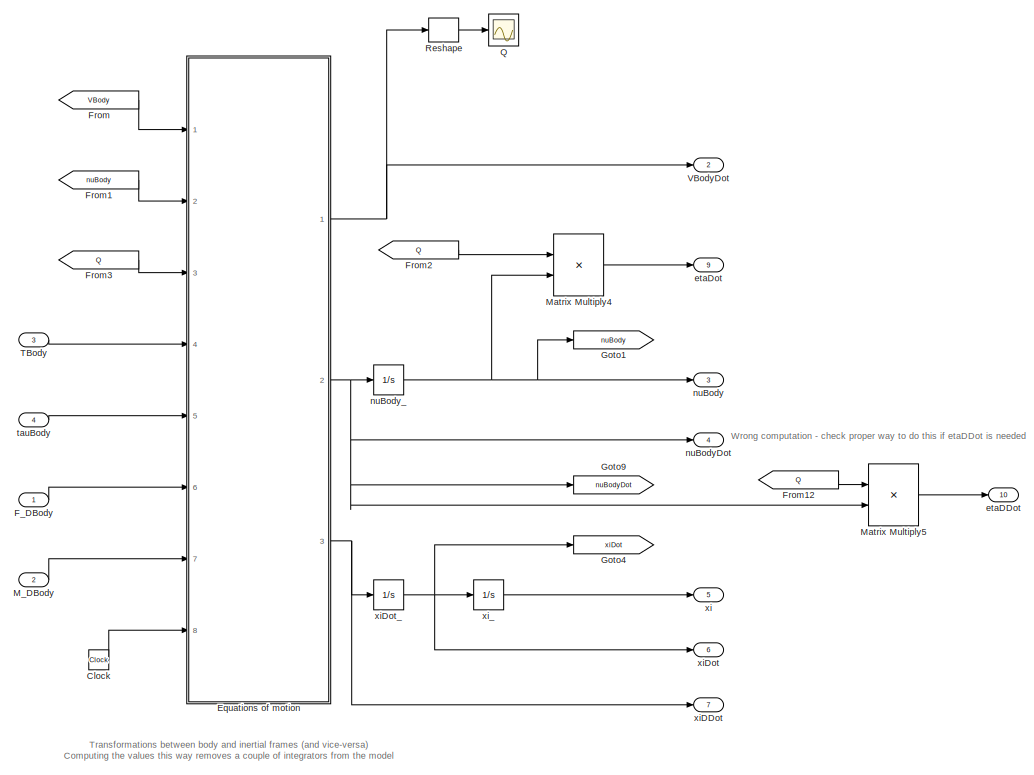
[diagram: Quadrotor Quaternion Model - part 1/2, full width, top band]
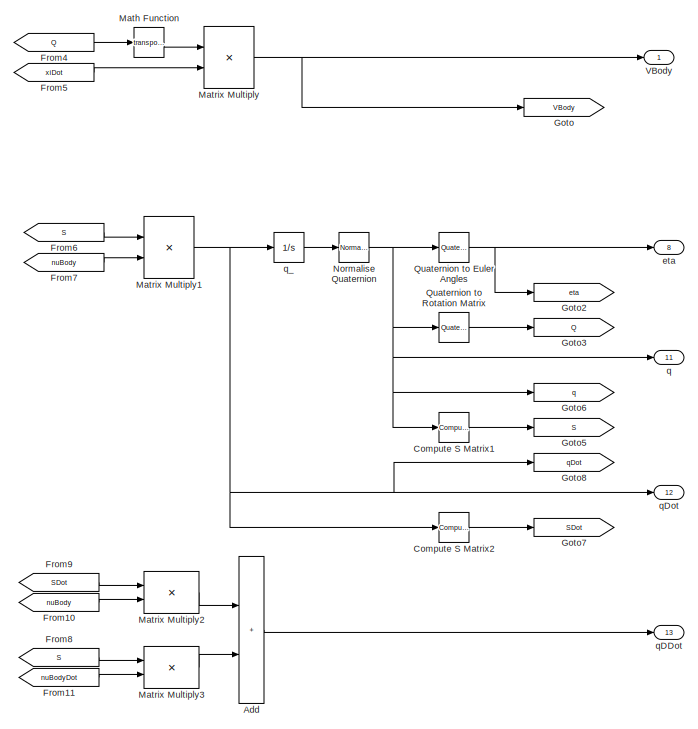
[diagram: Quadrotor Quaternion Model - part 2/2, bottom center region]
BLOCK [SubSystem] Quadrotor Quaternion Model
  Ports = [4, 13]
  RequestExecContextInheritance = off
BLOCK [Sum] Quadrotor Quaternion Model/Add
  IconShape = rectangular
  Ports = [2, 1]
BLOCK [Clock] Quadrotor Quaternion Model/Clock
BLOCK [Reference] Quadrotor Quaternion Model/Compute S Matrix1  REF=QuaternionLibrary/Compute
S Matrix
  Ports = [1, 1]
  SourceBlock = QuaternionLibrary/Compute\nS Matrix
BLOCK [Reference] Quadrotor Quaternion Model/Compute S Matrix2  REF=QuaternionLibrary/Compute
S Matrix
  Ports = [1, 1]
  SourceBlock = QuaternionLibrary/Compute\nS Matrix
BLOCK [SubSystem] Quadrotor Quaternion Model/Equations of motion
  ErrorFcn = Stateflow.Translate.translate
  PermitHierarchicalResolution = ExplicitOnly
  Ports = [8, 3]
  RequestExecContextInheritance = off
  SFBlockType = MATLAB Function
  TreatAsAtomicUnit = on
BLOCK [Demux] Quadrotor Quaternion Model/Equations of motion/ Demux 
  Outputs = 1
  Ports = [1, 1]
BLOCK [S-Function] Quadrotor Quaternion Model/Equations of motion/ SFunction 
  EnableBusSupport = on
  FunctionName = sf_sfun
  Parameters = Simulation,Uav
  PortCounts = [8 4]
  Ports = [8, 4]
  SFcnIsStateOwnerBlock = off
  SFunctionDeploymentMode = off
  Tag = Stateflow S-Function 24
BLOCK [Terminator] Quadrotor Quaternion Model/Equations of motion/ Terminator 
BLOCK [Inport] Quadrotor Quaternion Model/Equations of motion/F_D
  Port = 6
BLOCK [Inport] Quadrotor Quaternion Model/Equations of motion/M_D
  Port = 7
BLOCK [Inport] Quadrotor Quaternion Model/Equations of motion/Q
  Port = 3
BLOCK [Inport] Quadrotor Quaternion Model/Equations of motion/TBody
  Port = 4
BLOCK [Inport] Quadrotor Quaternion Model/Equations of motion/VBody
BLOCK [Outport] Quadrotor Quaternion Model/Equations of motion/VBodyDot
  VectorParamsAs1DForOutWhenUnconnected = off
BLOCK [Inport] Quadrotor Quaternion Model/Equations of motion/nuBody
  Port = 2
BLOCK [Outport] Quadrotor Quaternion Model/Equations of motion/nuBodyDot
  Port = 2
  VectorParamsAs1DForOutWhenUnconnected = off
BLOCK [Inport] Quadrotor Quaternion Model/Equations of motion/tauBody
  Port = 5
BLOCK [Inport] Quadrotor Quaternion Model/Equations of motion/time
  Port = 8
BLOCK [Outport] Quadrotor Quaternion Model/Equations of motion/xiDDot
  Port = 3
  VectorParamsAs1DForOutWhenUnconnected = off
BLOCK [Inport] Quadrotor Quaternion Model/F_DBody
  Unit = N
BLOCK [From] Quadrotor Quaternion Model/From
  GotoTag = VBody
BLOCK [From] Quadrotor Quaternion Model/From1
  GotoTag = nuBody
BLOCK [From] Quadrotor Quaternion Model/From10
  GotoTag = nuBody
BLOCK [From] Quadrotor Quaternion Model/From11
  GotoTag = nuBodyDot
BLOCK [From] Quadrotor Quaternion Model/From12
  GotoTag = Q
BLOCK [From] Quadrotor Quaternion Model/From2
  GotoTag = Q
BLOCK [From] Quadrotor Quaternion Model/From3
  GotoTag = Q
BLOCK [From] Quadrotor Quaternion Model/From4
  GotoTag = Q
BLOCK [From] Quadrotor Quaternion Model/From5
  GotoTag = xiDot
BLOCK [From] Quadrotor Quaternion Model/From6
  GotoTag = S
BLOCK [From] Quadrotor Quaternion Model/From7
  GotoTag = nuBody
BLOCK [From] Quadrotor Quaternion Model/From8
  GotoTag = S
BLOCK [From] Quadrotor Quaternion Model/From9
  GotoTag = SDot
BLOCK [Goto] Quadrotor Quaternion Model/Goto
  GotoTag = VBody
BLOCK [Goto] Quadrotor Quaternion Model/Goto1
  GotoTag = nuBody
BLOCK [Goto] Quadrotor Quaternion Model/Goto2
  GotoTag = eta
BLOCK [Goto] Quadrotor Quaternion Model/Goto3
  GotoTag = Q
BLOCK [Goto] Quadrotor Quaternion Model/Goto4
  GotoTag = xiDot
BLOCK [Goto] Quadrotor Quaternion Model/Goto5
  GotoTag = S
BLOCK [Goto] Quadrotor Quaternion Model/Goto6
  GotoTag = q
BLOCK [Goto] Quadrotor Quaternion Model/Goto7
  GotoTag = SDot
BLOCK [Goto] Quadrotor Quaternion Model/Goto8
  GotoTag = qDot
BLOCK [Goto] Quadrotor Quaternion Model/Goto9
  GotoTag = nuBodyDot
BLOCK [Inport] Quadrotor Quaternion Model/M_DBody
  Port = 2
  Unit = N*m
BLOCK [Math] Quadrotor Quaternion Model/Math Function
  Operator = transpose
  Ports = [1, 1]
  SignedPower = on
BLOCK [Product] Quadrotor Quaternion Model/Matrix Multiply
  Multiplication = Matrix(*)
  Ports = [2, 1]
BLOCK [Product] Quadrotor Quaternion Model/Matrix Multiply1
  Multiplication = Matrix(*)
  Ports = [2, 1]
BLOCK [Product] Quadrotor Quaternion Model/Matrix Multiply2
  Multiplication = Matrix(*)
  Ports = [2, 1]
BLOCK [Product] Quadrotor Quaternion Model/Matrix Multiply3
  Multiplication = Matrix(*)
  Ports = [2, 1]
BLOCK [Product] Quadrotor Quaternion Model/Matrix Multiply4
  Multiplication = Matrix(*)
  Ports = [2, 1]
BLOCK [Product] Quadrotor Quaternion Model/Matrix Multiply5
  Multiplication = Matrix(*)
  Ports = [2, 1]
BLOCK [Reference] Quadrotor Quaternion Model/Normalise Quaternion  REF=QuaternionLibrary/Normalise
Quaternion
  Ports = [1, 1]
  SourceBlock = QuaternionLibrary/Normalise\nQuaternion
BLOCK [Scope] Quadrotor Quaternion Model/Q
  Floating = off
  NumInputPorts = 1
  Ports = [1]
  ScopeSpecificationString = Simulink.scopes.TimeScopeBlockCfg('CurrentConfiguration', extmgr.ConfigurationSet(extmgr.Configuration('Core','General UI',true),extmgr.Configuration('Core','Source UI',true),extmgr.Configuration('Sources','WiredSimulink',true,'DataLoggingVariableName','ScopeData3','DataLoggingLimitDataPoints',true,'DataLoggingSaveFormat','Array','DataLoggingDecimation','1','DataLoggingDecimateData',true),extmgr.C...<+1517ch>
BLOCK [Reference] Quadrotor Quaternion Model/Quaternion to Euler Angles  REF=QuaternionLibrary/Quaternion
to Euler Angles
  Ports = [1, 1]
  SourceBlock = QuaternionLibrary/Quaternion\nto Euler Angles
BLOCK [Reference] Quadrotor Quaternion Model/Quaternion to Rotation Matrix  REF=QuaternionLibrary/Quaternion
to Rotation Matrix
  Ports = [1, 1]
  SourceBlock = QuaternionLibrary/Quaternion\nto Rotation Matrix
BLOCK [Reshape] Quadrotor Quaternion Model/Reshape
  OutputDimensionality = Column vector (2-D)
  Ports = [1, 1]
BLOCK [Inport] Quadrotor Quaternion Model/TBody
  Port = 3
  Unit = N
BLOCK [Outport] Quadrotor Quaternion Model/VBody
  Unit = m/s
  VectorParamsAs1DForOutWhenUnconnected = off
BLOCK [Outport] Quadrotor Quaternion Model/VBodyDot
  Port = 2
  Unit = m/s^2
  VectorParamsAs1DForOutWhenUnconnected = off
BLOCK [Outport] Quadrotor Quaternion Model/eta
  Port = 8
  Unit = rad
  VectorParamsAs1DForOutWhenUnconnected = off
BLOCK [Outport] Quadrotor Quaternion Model/etaDDot
  Port = 10
  Unit = rad/s^2
  VectorParamsAs1DForOutWhenUnconnected = off
BLOCK [Outport] Quadrotor Quaternion Model/etaDot
  Port = 9
  Unit = rad/s
  VectorParamsAs1DForOutWhenUnconnected = off
BLOCK [Outport] Quadrotor Quaternion Model/nuBody
  Port = 3
  Unit = rad/s
  VectorParamsAs1DForOutWhenUnconnected = off
BLOCK [Outport] Quadrotor Quaternion Model/nuBodyDot
  Port = 4
  Unit = rad/s^2
  VectorParamsAs1DForOutWhenUnconnected = off
BLOCK [Integrator] Quadrotor Quaternion Model/nuBody_
  ContinuousStateAttributes = 'nuBody'
  InitialCondition = Initial.NU_BODY
  Ports = [1, 1]
BLOCK [Outport] Quadrotor Quaternion Model/q
  Port = 11
  VectorParamsAs1DForOutWhenUnconnected = off
BLOCK [Outport] Quadrotor Quaternion Model/qDDot
  Port = 13
  VectorParamsAs1DForOutWhenUnconnected = off
BLOCK [Outport] Quadrotor Quaternion Model/qDot
  Port = 12
  VectorParamsAs1DForOutWhenUnconnected = off
BLOCK [Integrator] Quadrotor Quaternion Model/q_
  ContinuousStateAttributes = 'q'
  InitialCondition = Initial.Q
  Ports = [1, 1]
BLOCK [Inport] Quadrotor Quaternion Model/tauBody
  Port = 4
  Unit = N*m
BLOCK [Outport] Quadrotor Quaternion Model/xi
  Port = 5
  Unit = m
  VectorParamsAs1DForOutWhenUnconnected = off
BLOCK [Outport] Quadrotor Quaternion Model/xiDDot
  Port = 7
  Unit = m/s^2
  VectorParamsAs1DForOutWhenUnconnected = off
BLOCK [Outport] Quadrotor Quaternion Model/xiDot
  Port = 6
  Unit = m/s
  VectorParamsAs1DForOutWhenUnconnected = off
BLOCK [Integrator] Quadrotor Quaternion Model/xiDot_
  ContinuousStateAttributes = 'xiDot'
  InitialCondition = Initial.XI_DOT
  Ports = [1, 1]
BLOCK [Integrator] Quadrotor Quaternion Model/xi_
  ContinuousStateAttributes = 'xi'
  InitialCondition = Initial.XI
  Ports = [1, 1]
BLOCK [Reference] Radians to Degrees   REF=QuaternionLibrary/Radians
to Degrees 
  Ports = [1, 1]
  SourceBlock = QuaternionLibrary/Radians\nto Degrees
BLOCK [Reference] Radians//s to Degrees//s  REF=QuaternionLibrary/Radians//s
to Degrees//s
  Ports = [1, 1]
  SourceBlock = QuaternionLibrary/Radians//s\nto Degrees//s
BLOCK [Reference] Radians//s to Degrees//s1  REF=QuaternionLibrary/Radians//s
to Degrees//s
  Ports = [1, 1]
  SourceBlock = QuaternionLibrary/Radians//s\nto Degrees//s
BLOCK [Selector] Selector
  IndexOptions = Index vector (dialog)
  Indices = [1:4]
  InputPortWidth = 8
  OutputSizes = 1
  Ports = [1, 1]
BLOCK [Selector] Selector10
  IndexOptions = Index vector (dialog)
  Indices = 2
  InputPortWidth = 3
  OutputSizes = 1
  Ports = [1, 1]
BLOCK [Selector] Selector11
  IndexOptions = Index vector (dialog)
  Indices = 3
  InputPortWidth = 3
  OutputSizes = 1
  Ports = [1, 1]
BLOCK [Selector] Selector12
  IndexOptions = Index vector (dialog)
  Indices = 2
  InputPortWidth = 3
  OutputSizes = 1
  Ports = [1, 1]
BLOCK [Selector] Selector13
  IndexOptions = Index vector (dialog)
  Indices = 3
  InputPortWidth = 3
  OutputSizes = 1
  Ports = [1, 1]
BLOCK [Selector] Selector14
  IndexOptions = Index vector (dialog)
  Indices = 1
  InputPortWidth = 3
  OutputSizes = 1
  Ports = [1, 1]
BLOCK [Selector] Selector2
  IndexOptions = Index vector (dialog)
  Indices = 1
  InputPortWidth = 3
  OutputSizes = 1
  Ports = [1, 1]
BLOCK [Selector] Selector3
  IndexOptions = Index vector (dialog)
  Indices = 2
  InputPortWidth = 3
  OutputSizes = 1
  Ports = [1, 1]
BLOCK [Selector] Selector4
  IndexOptions = Index vector (dialog)
  Indices = 3
  InputPortWidth = 3
  OutputSizes = 1
  Ports = [1, 1]
BLOCK [Selector] Selector6
  IndexOptions = Index vector (dialog)
  Indices = 1
  InputPortWidth = 3
  OutputSizes = 1
  Ports = [1, 1]
BLOCK [Selector] Selector7
  IndexOptions = Index vector (dialog)
  Indices = 2
  InputPortWidth = 3
  OutputSizes = 1
  Ports = [1, 1]
BLOCK [Selector] Selector8
  IndexOptions = Index vector (dialog)
  Indices = 3
  InputPortWidth = 3
  OutputSizes = 1
  Ports = [1, 1]
BLOCK [Selector] Selector9
  IndexOptions = Index vector (dialog)
  Indices = 1
  InputPortWidth = 3
  OutputSizes = 1
  Ports = [1, 1]
BLOCK [Scope] Sim PWM
  Floating = off
  NumInputPorts = 1
  Ports = [1]
  ScopeSpecificationString = Simulink.scopes.TimeScopeBlockCfg('CurrentConfiguration', extmgr.ConfigurationSet(extmgr.Configuration('Core','General UI',true),extmgr.Configuration('Core','Source UI',true),extmgr.Configuration('Sources','WiredSimulink',true,'DataLoggingVariableName','ScopeData2'),extmgr.Configuration('Visuals','Time Domain',true,'SerializedDisplays',{struct('MinYLimReal','-0.50259','MaxYLimReal','0.72219','YLab...<+2456ch>
BLOCK [Sin] Sinusoidal input
  Amplitude = Wind.Ampl
  Bias = Wind.Bias
  Commented = on
  Frequency = Wind.Freq
  Ports = [0, 1]
  SampleTime = 0
BLOCK [SignalGenerator] Square Wave Generator
  Amplitude = 50
  Frequency = 2
  Ports = [0, 1]
  WaveForm = square
BLOCK [Step] Step wind input
  After = [5 0 0]'
  Before = [3 0 0]'
  SampleTime = 0
  Time = 5
BLOCK [Sum] Sum2
  Inputs = -+|
  Ports = [2, 1]
BLOCK [Scope] TBody
  Floating = off
  NumInputPorts = 3
  Ports = [3]
  ScopeSpecificationString = Simulink.scopes.TimeScopeBlockCfg('CurrentConfiguration', extmgr.ConfigurationSet(extmgr.Configuration('Core','General UI',true),extmgr.Configuration('Core','Source UI',true),extmgr.Configuration('Sources','WiredSimulink',true,'DataLoggingVariableName','ScopeData3'),extmgr.Configuration('Visuals','Time Domain',true,'SerializedDisplays',{struct('MinYLimReal','-1.61234','MaxYLimReal','1.02662','YLab...<+2771ch>
BLOCK [Scope] TMotorIndividual
  Floating = off
  NumInputPorts = 1
  Ports = [1]
  ScopeSpecificationString = Simulink.scopes.TimeScopeBlockCfg('CurrentConfiguration', extmgr.ConfigurationSet(extmgr.Configuration('Core','General UI',true),extmgr.Configuration('Core','Source UI',true),extmgr.Configuration('Sources','WiredSimulink',true,'DataLoggingVariableName','ScopeData2'),extmgr.Configuration('Visuals','Time Domain',true,'SerializedDisplays',{struct('MinYLimReal','-4.88299','MaxYLimReal','0.54255','YLab...<+1877ch>
BLOCK [Terminator] Terminator
BLOCK [Terminator] Terminator1
BLOCK [Terminator] Terminator2
BLOCK [Terminator] Terminator3
BLOCK [Terminator] Terminator4
BLOCK [Inport] U
  PortDimensions = 3
BLOCK [FromWorkspace] Varying wind input
  Commented = on
  VariableName = windInput
BLOCK [Scope] Wind Input
  Floating = off
  NumInputPorts = 1
  Ports = [1]
  ScopeSpecificationString = Simulink.scopes.TimeScopeBlockCfg('CurrentConfiguration', extmgr.ConfigurationSet(extmgr.Configuration('Core','General UI',true),extmgr.Configuration('Core','Source UI',true),extmgr.Configuration('Sources','WiredSimulink',true,'DataLoggingVariableName','ScopeData1'),extmgr.Configuration('Visuals','Time Domain',true,'SerializedDisplays',{struct('MinYLimReal','-1.00000','MaxYLimReal','1.00000','YLab...<+1471ch>
BLOCK [From] att_from_nuBody
  Commented = on
  GotoTag = nuBody
BLOCK [From] att_from_q
  Commented = on
  GotoTag = q
  Tag = q
BLOCK [From] att_from_q1
  Commented = on
  GotoTag = v_rates_sp
  Tag = q
BLOCK [Scope] eta
  Floating = off
  NumInputPorts = 3
  Ports = [3]
  ScopeSpecificationString = Simulink.scopes.TimeScopeBlockCfg('CurrentConfiguration', extmgr.ConfigurationSet(extmgr.Configuration('Core','General UI',true),extmgr.Configuration('Core','Source UI',true),extmgr.Configuration('Sources','WiredSimulink',true,'DataLoggingVariableName','ScopeData2'),extmgr.Configuration('Visuals','Time Domain',true,'SerializedDisplays',{struct('MinYLimReal','-0.000000000031','MaxYLimReal','0.00000...<+2792ch>
BLOCK [Scope] realPwm
  Floating = off
  NumInputPorts = 1
  Ports = [1]
  ScopeSpecificationString = Simulink.scopes.TimeScopeBlockCfg('CurrentConfiguration', extmgr.ConfigurationSet(extmgr.Configuration('Core','General UI',true),extmgr.Configuration('Core','Source UI',true),extmgr.Configuration('Sources','WiredSimulink',true,'DataLoggingVariableName','ScopeData2'),extmgr.Configuration('Visuals','Time Domain',true,'SerializedDisplays',{struct('MinYLimReal','1173.65246','MaxYLimReal','1844.0675','...<+1591ch>
BLOCK [Scope] tauBody
  Floating = off
  NumInputPorts = 3
  Ports = [3]
  ScopeSpecificationString = Simulink.scopes.TimeScopeBlockCfg('CurrentConfiguration', extmgr.ConfigurationSet(extmgr.Configuration('Core','General UI',true),extmgr.Configuration('Core','Source UI',true),extmgr.Configuration('Sources','WiredSimulink',true,'DataLoggingVariableName','ScopeData4'),extmgr.Configuration('Visuals','Time Domain',true,'SerializedDisplays',{struct('MinYLimReal','-0.0000000000000021','MaxYLimReal','0.0...<+2809ch>
BLOCK [Scope] tauMotorIndividual
  Floating = off
  NumInputPorts = 1
  Ports = [1]
  ScopeSpecificationString = Simulink.scopes.TimeScopeBlockCfg('CurrentConfiguration', extmgr.ConfigurationSet(extmgr.Configuration('Core','General UI',true),extmgr.Configuration('Core','Source UI',true),extmgr.Configuration('Sources','WiredSimulink',true,'DataLoggingVariableName','ScopeData1'),extmgr.Configuration('Visuals','Time Domain',true,'SerializedDisplays',{struct('MinYLimReal','-0.43698','MaxYLimReal','0.43698','YLab...<+1877ch>
BLOCK [Constant] thrustDes
  Value = Uav.THROTTLE_HOVER
ANNOTATION (root): Important Notes NED coordinate system used, therefore xBody faces forward, yBody faces to the right and zBody faces down. PX4 rotor assignment for quadcopter: 1: front right 2: back left 3: front left 4: back right Airframe reference available at: https://dev.px4.io/en/airframes/airframe_reference.html
ANNOTATION (root): Variables Description Variable Vector notation Frame Description xi [x y z] World Position eta [phi theta psi] World Roll pitch yaw orientation nuBody [p q r] Body Angular velocity q [qW qAx1 qAx2 qAx3] World Quaternion orientation Uav.BETA [beta1 ... betaN] Body Angle to motor (CCW)
ANNOTATION (root): Attitude Controller
ANNOTATION (root): Inputs
ANNOTATION (root): Position Controller
ANNOTATION (root): Information
ANNOTATION (root): Motor and Aero Dynamics
ANNOTATION (root): Plots
ANNOTATION (root): Applied Wind Speed
ANNOTATION (root): Plant
ANNOTATION Quadrotor Euler Model: Transformations between body and inertial frames (and vice-versa) Computing the values this way removes 2 integrators from the model
ANNOTATION Quadrotor Quaternion Model: Transformations between body and inertial frames (and vice-versa) Computing the values this way removes a couple of integrators from the model
ANNOTATION Quadrotor Quaternion Model: Wrong computation - check proper way to do this if etaDDot is needed
LINE Applied wind speed/Compute V_app2:1 -> Applied wind speed/Sum1:2
LINE Applied wind speed/Gain1:1 -> Applied wind speed/Relative velocity:1
LINE Applied wind speed/Gain:1 -> Applied wind speed/Sum:1
LINE Applied wind speed/Quaternion to Rotation Matrix1:1 -> Applied wind speed/Compute V_app2:1
NET Applied wind speed/Relative velocity:1 -> Applied wind speed/Relative velocities:1, Applied wind speed/Sum:2
NET Applied wind speed/Sum1:1 -> Applied wind speed/Gain:1, Applied wind speed/V_appBody:1
LINE Applied wind speed/Sum:1 -> Applied wind speed/VMotor_appBody:1
LINE Applied wind speed/U:1 -> Applied wind speed/Compute V_app2:2
LINE Applied wind speed/VBody:1 -> Applied wind speed/Sum1:1
NET Applied wind speed/nuBody:1 -> Applied wind speed/Gain1:1, Applied wind speed/Rotational velocities:1
LINE Applied wind speed/q:1 -> Applied wind speed/Quaternion to Rotation Matrix1:1
LINE Applied wind speed:1 -> Goto39:1
LINE Applied wind speed:2 -> Goto38:1
LINE Attitude Controller/Accumulator1:1 -> Attitude Controller/Mux5:2
LINE Attitude Controller/Accumulator2:1 -> Attitude Controller/Mux5:1
LINE Attitude Controller/Accumulator:1 -> Attitude Controller/Mux5:3
LINE Attitude Controller/Constant5:1 -> Attitude Controller/Mux1:2
LINE Attitude Controller/Demux:1 -> Attitude Controller/I2:1
LINE Attitude Controller/Demux:2 -> Attitude Controller/I1:1
LINE Attitude Controller/Demux:3 -> Attitude Controller/I:1
LINE Attitude Controller/Filter:1 -> Attitude Controller/acc_err:1
LINE Attitude Controller/Filter:2 -> Attitude Controller/Unit Delay3:1
LINE Attitude Controller/I1:1 -> Attitude Controller/Accumulator1:1
LINE Attitude Controller/I2:1 -> Attitude Controller/Accumulator2:1
LINE Attitude Controller/I:1 -> Attitude Controller/Accumulator:1
LINE Attitude Controller/MATLAB Function:1 -> Attitude Controller/Mux3:2
LINE Attitude Controller/MATLAB Function:2 -> Attitude Controller/Unit Delay:1
LINE Attitude Controller/Manual Switch:1 -> Attitude Controller/Mux:1
LINE Attitude Controller/Mux1:1 -> Attitude Controller/actuators_control:1
LINE Attitude Controller/Mux2:1 -> Attitude Controller/Manual Switch:1
LINE Attitude Controller/Mux3:1 -> Attitude Controller/Scope1:1
LINE Attitude Controller/Mux4:1 -> Attitude Controller/Manual Switch:2
LINE Attitude Controller/Mux5:1 -> Attitude Controller/int:1
LINE Attitude Controller/Mux:1 -> Attitude Controller/Mux1:1
LINE Attitude Controller/Pitch PID Discrete/Accumulator:1 -> Attitude Controller/Pitch PID Discrete/Add:3
LINE Attitude Controller/Pitch PID Discrete/Add:1 -> Attitude Controller/Pitch PID Discrete/Out:1
LINE Attitude Controller/Pitch PID Discrete/D:1 -> Attitude Controller/Pitch PID Discrete/Add:2
LINE Attitude Controller/Pitch PID Discrete/Discrete Derivative:1 -> Attitude Controller/Pitch PID Discrete/D:1
LINE Attitude Controller/Pitch PID Discrete/I:1 -> Attitude Controller/Pitch PID Discrete/Accumulator:1
LINE Attitude Controller/Pitch PID Discrete/MATLAB Function:1 -> Attitude Controller/Pitch PID Discrete/Discrete Derivative:1
LINE Attitude Controller/Pitch PID Discrete/MATLAB Function:2 -> Attitude Controller/Pitch PID Discrete/Unit Delay:1
LINE Attitude Controller/Pitch PID Discrete/P:1 -> Attitude Controller/Pitch PID Discrete/Add:1
NET Attitude Controller/Pitch PID Discrete/Sum:1 -> Attitude Controller/Pitch PID Discrete/I:1, Attitude Controller/Pitch PID Discrete/P:1
LINE Attitude Controller/Pitch PID Discrete/Unit Delay:1 -> Attitude Controller/Pitch PID Discrete/MATLAB Function:2
NET Attitude Controller/Pitch PID Discrete/mes:1 -> Attitude Controller/Pitch PID Discrete/MATLAB Function:1, Attitude Controller/Pitch PID Discrete/Sum:2
LINE Attitude Controller/Pitch PID Discrete/ref:1 -> Attitude Controller/Pitch PID Discrete/Sum:1
LINE Attitude Controller/Pitch PID Discrete:1 -> Attitude Controller/Mux4:2
LINE Attitude Controller/Pitch PID/Add:1 -> Attitude Controller/Pitch PID/Out:1
LINE Attitude Controller/Pitch PID/D filter:1 -> Attitude Controller/Pitch PID/D:1
LINE Attitude Controller/Pitch PID/D:1 -> Attitude Controller/Pitch PID/Add:2
LINE Attitude Controller/Pitch PID/I:1 -> Attitude Controller/Pitch PID/Integrator1:1
LINE Attitude Controller/Pitch PID/Integrator1:1 -> Attitude Controller/Pitch PID/Add:3
LINE Attitude Controller/Pitch PID/P:1 -> Attitude Controller/Pitch PID/Add:1
NET Attitude Controller/Pitch PID/Sum:1 -> Attitude Controller/Pitch PID/I:1, Attitude Controller/Pitch PID/P:1
NET Attitude Controller/Pitch PID/meas:1 -> Attitude Controller/Pitch PID/D filter:1, Attitude Controller/Pitch PID/Sum:2
LINE Attitude Controller/Pitch PID/ref:1 -> Attitude Controller/Pitch PID/Sum:1
LINE Attitude Controller/Pitch PID:1 -> Attitude Controller/Mux2:2
LINE Attitude Controller/Roll PID Discrete/Accumulator:1 -> Attitude Controller/Roll PID Discrete/Add:3
LINE Attitude Controller/Roll PID Discrete/Add:1 -> Attitude Controller/Roll PID Discrete/Out:1
LINE Attitude Controller/Roll PID Discrete/D:1 -> Attitude Controller/Roll PID Discrete/Add:2
LINE Attitude Controller/Roll PID Discrete/Discrete Derivative:1 -> Attitude Controller/Roll PID Discrete/D:1
LINE Attitude Controller/Roll PID Discrete/I:1 -> Attitude Controller/Roll PID Discrete/Accumulator:1
LINE Attitude Controller/Roll PID Discrete/MATLAB Function:1 -> Attitude Controller/Roll PID Discrete/Discrete Derivative:1
LINE Attitude Controller/Roll PID Discrete/MATLAB Function:2 -> Attitude Controller/Roll PID Discrete/Unit Delay:1
LINE Attitude Controller/Roll PID Discrete/P:1 -> Attitude Controller/Roll PID Discrete/Add:1
NET Attitude Controller/Roll PID Discrete/Sum:1 -> Attitude Controller/Roll PID Discrete/I:1, Attitude Controller/Roll PID Discrete/P:1
LINE Attitude Controller/Roll PID Discrete/Unit Delay:1 -> Attitude Controller/Roll PID Discrete/MATLAB Function:2
NET Attitude Controller/Roll PID Discrete/mes:1 -> Attitude Controller/Roll PID Discrete/MATLAB Function:1, Attitude Controller/Roll PID Discrete/Sum:2
LINE Attitude Controller/Roll PID Discrete/ref:1 -> Attitude Controller/Roll PID Discrete/Sum:1
LINE Attitude Controller/Roll PID Discrete:1 -> Attitude Controller/Mux4:1
LINE Attitude Controller/Roll PID/Add:1 -> Attitude Controller/Roll PID/Out:1
LINE Attitude Controller/Roll PID/D filter:1 -> Attitude Controller/Roll PID/D:1
LINE Attitude Controller/Roll PID/D:1 -> Attitude Controller/Roll PID/Add:2
LINE Attitude Controller/Roll PID/I:1 -> Attitude Controller/Roll PID/Integrator1:1
LINE Attitude Controller/Roll PID/Integrator1:1 -> Attitude Controller/Roll PID/Add:3
LINE Attitude Controller/Roll PID/P:1 -> Attitude Controller/Roll PID/Add:1
NET Attitude Controller/Roll PID/Sum:1 -> Attitude Controller/Roll PID/I:1, Attitude Controller/Roll PID/P:1
NET Attitude Controller/Roll PID/meas:1 -> Attitude Controller/Roll PID/D filter:1, Attitude Controller/Roll PID/Sum:2
LINE Attitude Controller/Roll PID/ref:1 -> Attitude Controller/Roll PID/Sum:1
LINE Attitude Controller/Roll PID:1 -> Attitude Controller/Mux2:1
LINE Attitude Controller/Selector10:1 -> Attitude Controller/Yaw PID:1
LINE Attitude Controller/Selector11:1 -> Attitude Controller/Yaw PID:2
LINE Attitude Controller/Selector1:1 -> Attitude Controller/Roll PID Discrete:2
LINE Attitude Controller/Selector2:1 -> Attitude Controller/Pitch PID Discrete:1
LINE Attitude Controller/Selector3:1 -> Attitude Controller/Pitch PID Discrete:2
LINE Attitude Controller/Selector4:1 -> Attitude Controller/Yaw PID Discrete:1
LINE Attitude Controller/Selector5:1 -> Attitude Controller/Yaw PID Discrete:2
LINE Attitude Controller/Selector6:1 -> Attitude Controller/Roll PID:1
LINE Attitude Controller/Selector7:1 -> Attitude Controller/Roll PID:2
LINE Attitude Controller/Selector8:1 -> Attitude Controller/Pitch PID:1
LINE Attitude Controller/Selector9:1 -> Attitude Controller/Pitch PID:2
LINE Attitude Controller/Selector:1 -> Attitude Controller/Roll PID Discrete:1
NET Attitude Controller/Step:1 -> Attitude Controller/MATLAB Function:1, Attitude Controller/Transfer Fcn:1
LINE Attitude Controller/Sum:1 -> Attitude Controller/Demux:1
LINE Attitude Controller/Transfer Fcn:1 -> Attitude Controller/Mux3:1
NET Attitude Controller/Unit Delay1:1 -> Attitude Controller/Selector10:1, Attitude Controller/Selector2:1, Attitude Controller/Selector4:1, Attitude Controller/Selector6:1, Attitude Controller/Selector8:1, Attitude Controller/Selector:1, Attitude Controller/Sum:2
LINE Attitude Controller/Unit Delay2:1 -> Attitude Controller/Mux:2
LINE Attitude Controller/Unit Delay3:1 -> Attitude Controller/Filter:2
LINE Attitude Controller/Unit Delay:1 -> Attitude Controller/MATLAB Function:2
LINE Attitude Controller/Yaw PID Discrete/Accumulator:1 -> Attitude Controller/Yaw PID Discrete/Add:3
LINE Attitude Controller/Yaw PID Discrete/Add:1 -> Attitude Controller/Yaw PID Discrete/Out:1
LINE Attitude Controller/Yaw PID Discrete/D:1 -> Attitude Controller/Yaw PID Discrete/Add:2
LINE Attitude Controller/Yaw PID Discrete/Discrete Derivative:1 -> Attitude Controller/Yaw PID Discrete/D:1
LINE Attitude Controller/Yaw PID Discrete/I:1 -> Attitude Controller/Yaw PID Discrete/Accumulator:1
LINE Attitude Controller/Yaw PID Discrete/MATLAB Function:1 -> Attitude Controller/Yaw PID Discrete/Discrete Derivative:1
LINE Attitude Controller/Yaw PID Discrete/MATLAB Function:2 -> Attitude Controller/Yaw PID Discrete/Unit Delay:1
LINE Attitude Controller/Yaw PID Discrete/P:1 -> Attitude Controller/Yaw PID Discrete/Add:1
NET Attitude Controller/Yaw PID Discrete/Sum:1 -> Attitude Controller/Yaw PID Discrete/I:1, Attitude Controller/Yaw PID Discrete/P:1
LINE Attitude Controller/Yaw PID Discrete/Unit Delay:1 -> Attitude Controller/Yaw PID Discrete/MATLAB Function:2
NET Attitude Controller/Yaw PID Discrete/mes:1 -> Attitude Controller/Yaw PID Discrete/MATLAB Function:1, Attitude Controller/Yaw PID Discrete/Sum:2
LINE Attitude Controller/Yaw PID Discrete/ref:1 -> Attitude Controller/Yaw PID Discrete/Sum:1
LINE Attitude Controller/Yaw PID Discrete:1 -> Attitude Controller/Mux4:3
LINE Attitude Controller/Yaw PID/Add:1 -> Attitude Controller/Yaw PID/Out:1
LINE Attitude Controller/Yaw PID/D filter:1 -> Attitude Controller/Yaw PID/D:1
LINE Attitude Controller/Yaw PID/D:1 -> Attitude Controller/Yaw PID/Add:2
LINE Attitude Controller/Yaw PID/I:1 -> Attitude Controller/Yaw PID/Integrator1:1
LINE Attitude Controller/Yaw PID/Integrator1:1 -> Attitude Controller/Yaw PID/Add:3
LINE Attitude Controller/Yaw PID/P:1 -> Attitude Controller/Yaw PID/Add:1
NET Attitude Controller/Yaw PID/Sum:1 -> Attitude Controller/Yaw PID/I:1, Attitude Controller/Yaw PID/P:1
NET Attitude Controller/Yaw PID/meas:1 -> Attitude Controller/Yaw PID/D filter:1, Attitude Controller/Yaw PID/Sum:2
LINE Attitude Controller/Yaw PID/ref:1 -> Attitude Controller/Yaw PID/Sum:1
LINE Attitude Controller/Yaw PID:1 -> Attitude Controller/Mux2:3
NET Attitude Controller/nuBody:1 -> Attitude Controller/Filter:1, Attitude Controller/Selector11:1, Attitude Controller/Selector1:1, Attitude Controller/Selector3:1, Attitude Controller/Selector5:1, Attitude Controller/Selector7:1, Attitude Controller/Selector9:1, Attitude Controller/Sum:1
NET Attitude Controller/ratesDes:1 -> Attitude Controller/Unit Delay1:1, Attitude Controller/rates_sp:1
LINE Attitude Controller/thrust_sp:1 -> Attitude Controller/Unit Delay2:1
LINE Attitude Controller:1 -> Selector:1
LINE Attitude Controller:2 -> Terminator4:1
LINE Attitude Controller:3 -> Terminator3:1
LINE Attitude Controller:4 -> Terminator:1
LINE Compute Sph:1 -> Terminator1:1
LINE Compute Sph:2 -> Terminator2:1
LINE Compute Sph:3 -> Max error:1
LINE Constant1:1 -> MultirotorAttitudeControl1:2
LINE Constant2:1 -> Sum2:1
LINE Constant3:1 -> MultirotorAttitudeControl1:3
LINE Constant4:1 -> MultirotorAttitudeControl1:5
LINE Constant5:1 -> Mux:2
LINE Constant6:1 -> MultirotorAttitudeControl1:4
LINE Constant:1 -> MultirotorAttitudeControl1:1
LINE Degrees to Radians:1 -> Mux19:2
LINE Demux1:1 -> TBody:1
LINE Demux1:2 -> TBody:2
LINE Demux1:3 -> TBody:3
LINE Demux2:1 -> tauBody:1
LINE Demux2:2 -> tauBody:2
LINE Demux2:3 -> tauBody:3
LINE Demux:1 -> eta:1
LINE Demux:2 -> eta:2
LINE Demux:3 -> eta:3
NET Drag model:1 -> Goto18:1, Quadrotor Quaternion Model:1
LINE Drag model:2 -> Quadrotor Quaternion Model:2
LINE Fixed wind input:1 -> Multiport Switch:3
LINE From10:1 -> Motor model:2
LINE From11:1 -> Radians//s to Degrees//s1:1
LINE From12:1 -> Drag force:1
LINE From13:1 -> Motor model:4
NET From14:1 -> Compute Sph:1, L2 norm:1
LINE From16:1 -> Demux:1
LINE From17:1 -> Radians to Degrees :1
LINE From19:1 -> Demux1:1
LINE From1:1 -> Motor model:5
LINE From20:1 -> Demux2:1
LINE From26:1 -> Applied wind speed:2
LINE From27:1 -> Applied wind speed:1
LINE From2:1 -> Applied wind speed:4
LINE From38:1 -> Drag model:5
LINE From3:1 -> Drag model:2
LINE From4:1 -> Drag model:3
LINE From5:1 -> Motor model:3
NET From6:1 -> Selector2:1, Selector3:1, Selector4:1
LINE From7:1 -> Radians//s to Degrees//s:1
LINE From8:1 -> Attitude Controller:3
LINE From9:1 -> Applied wind speed:3
LINE From:1 -> Drag model:1
LINE Gain4:1 -> Sum2:2
LINE Ground1:1 -> Mux19:3
LINE Ground2:1 -> Mux19:1
LINE Input choice:1 -> Multiport Switch:1
LINE L2 norm:1 -> Max error1:1
LINE Logging buffer/Rate Transition:1 -> Logging buffer/pwmOut:1
LINE Logging buffer/pwmIn:1 -> Logging buffer/Rate Transition:1
LINE Logging buffer:1 -> Motor model:1
NET Manual Switch:1 -> Motor map:1, PX4 PWM:1, PX4 pwm:1
LINE Map [-1,1] to [0,1]/Constant:1 -> Map [-1,1] to [0,1]/Sum:1
LINE Map [-1,1] to [0,1]/Gain4:1 -> Map [-1,1] to [0,1]/out:1
LINE Map [-1,1] to [0,1]/Sum:1 -> Map [-1,1] to [0,1]/Gain4:1
LINE Map [-1,1] to [0,1]/in:1 -> Map [-1,1] to [0,1]/Sum:2
LINE Map [-1,1] to [0,1]:1 -> Logging buffer:1
LINE Matrix Multiply:1 -> Gain4:1
LINE Mixer1:1 -> Manual Switch:2
LINE Mixing matrix:1 -> Matrix Multiply:1
NET Motor map:1 -> Map [-1,1] to [0,1]:1, Sim PWM:1
LINE Motor model:1 -> Drag model:4
NET Motor model:2 -> Goto16:1, Quadrotor Quaternion Model:3
NET Motor model:3 -> Goto17:1, Quadrotor Quaternion Model:4
LINE Motor model:4 -> TMotorIndividual:1
LINE Motor model:5 -> tauMotorIndividual:1
LINE Motor model:6 -> realPwm:1
NET Multiport Switch:1 -> Goto15:1, Wind Input:1
LINE Mux13:1 -> Angular rates:3
LINE Mux14:1 -> Angular rates:2
LINE Mux15:1 -> Angular rates:1
NET Mux19:1 -> Attitude Controller:2, Goto13:1
LINE Mux:1 -> MultirotorAttitudeControl1:7
NET Quadrotor Euler Model/Compute etaDot:1 -> Quadrotor Euler Model/Goto3:1, Quadrotor Euler Model/Integrator5:1, Quadrotor Euler Model/etaDot:1
NET Quadrotor Euler Model/Constant:1 -> Quadrotor Euler Model/qDDot:1, Quadrotor Euler Model/qDot:1
NET Quadrotor Euler Model/Equations of motion:1 -> Quadrotor Euler Model/Reshape:1, Quadrotor Euler Model/VBodyDot:1
NET Quadrotor Euler Model/Equations of motion:2 -> Quadrotor Euler Model/nuBodyDot:1, Quadrotor Euler Model/nuBody_:1
NET Quadrotor Euler Model/Equations of motion:3 -> Quadrotor Euler Model/xiDDot:1, Quadrotor Euler Model/xiDot_:1
LINE Quadrotor Euler Model/Equations of motion:4 -> Quadrotor Euler Model/etaDDot:1
LINE Quadrotor Euler Model/Euler Angles to Quaternion:1 -> Quadrotor Euler Model/q:1
LINE Quadrotor Euler Model/F_DBody:1 -> Quadrotor Euler Model/Equations of motion:7
LINE Quadrotor Euler Model/From13:1 -> Quadrotor Euler Model/Equations of motion:4
LINE Quadrotor Euler Model/From1:1 -> Quadrotor Euler Model/Equations of motion:2
LINE Quadrotor Euler Model/From3:1 -> Quadrotor Euler Model/Equations of motion:3
LINE Quadrotor Euler Model/From4:1 -> Quadrotor Euler Model/Compute etaDot:2
LINE Quadrotor Euler Model/From5:1 -> Quadrotor Euler Model/compute VBody:1
LINE Quadrotor Euler Model/From6:1 -> Quadrotor Euler Model/Compute etaDot:1
LINE Quadrotor Euler Model/From7:1 -> Quadrotor Euler Model/compute VBody:2
LINE Quadrotor Euler Model/From:1 -> Quadrotor Euler Model/Equations of motion:1
NET Quadrotor Euler Model/Integrator5:1 -> Quadrotor Euler Model/Euler Angles to Quaternion:1, Quadrotor Euler Model/Goto2:1, Quadrotor Euler Model/Radians to Degrees:1, Quadrotor Euler Model/eta:1
LINE Quadrotor Euler Model/M_DBody:1 -> Quadrotor Euler Model/Equations of motion:8
LINE Quadrotor Euler Model/Radians to Degrees:1 -> Quadrotor Euler Model/Angles:1
LINE Quadrotor Euler Model/Reshape:1 -> Quadrotor Euler Model/Q:1
LINE Quadrotor Euler Model/TBody:1 -> Quadrotor Euler Model/Equations of motion:5
NET Quadrotor Euler Model/compute VBody:1 -> Quadrotor Euler Model/Goto:1, Quadrotor Euler Model/VBody:1
NET Quadrotor Euler Model/nuBody_:1 -> Quadrotor Euler Model/Goto1:1, Quadrotor Euler Model/nuBody:1
LINE Quadrotor Euler Model/tauBody:1 -> Quadrotor Euler Model/Equations of motion:6
NET Quadrotor Euler Model/xiDot_:1 -> Quadrotor Euler Model/Goto4:1, Quadrotor Euler Model/xiDot:1, Quadrotor Euler Model/xi_:1
LINE Quadrotor Euler Model/xi_:1 -> Quadrotor Euler Model/xi:1
LINE Quadrotor Quaternion Model/Add:1 -> Quadrotor Quaternion Model/qDDot:1
LINE Quadrotor Quaternion Model/Clock:1 -> Quadrotor Quaternion Model/Equations of motion:8
LINE Quadrotor Quaternion Model/Compute S Matrix1:1 -> Quadrotor Quaternion Model/Goto5:1
LINE Quadrotor Quaternion Model/Compute S Matrix2:1 -> Quadrotor Quaternion Model/Goto7:1
NET Quadrotor Quaternion Model/Equations of motion:1 -> Quadrotor Quaternion Model/Reshape:1, Quadrotor Quaternion Model/VBodyDot:1
NET Quadrotor Quaternion Model/Equations of motion:2 -> Quadrotor Quaternion Model/Goto9:1, Quadrotor Quaternion Model/Matrix Multiply5:2, Quadrotor Quaternion Model/nuBodyDot:1, Quadrotor Quaternion Model/nuBody_:1
NET Quadrotor Quaternion Model/Equations of motion:3 -> Quadrotor Quaternion Model/xiDDot:1, Quadrotor Quaternion Model/xiDot_:1
LINE Quadrotor Quaternion Model/F_DBody:1 -> Quadrotor Quaternion Model/Equations of motion:6
LINE Quadrotor Quaternion Model/From10:1 -> Quadrotor Quaternion Model/Matrix Multiply2:2
LINE Quadrotor Quaternion Model/From11:1 -> Quadrotor Quaternion Model/Matrix Multiply3:2
LINE Quadrotor Quaternion Model/From12:1 -> Quadrotor Quaternion Model/Matrix Multiply5:1
LINE Quadrotor Quaternion Model/From1:1 -> Quadrotor Quaternion Model/Equations of motion:2
LINE Quadrotor Quaternion Model/From2:1 -> Quadrotor Quaternion Model/Matrix Multiply4:1
LINE Quadrotor Quaternion Model/From3:1 -> Quadrotor Quaternion Model/Equations of motion:3
LINE Quadrotor Quaternion Model/From4:1 -> Quadrotor Quaternion Model/Math Function:1
LINE Quadrotor Quaternion Model/From5:1 -> Quadrotor Quaternion Model/Matrix Multiply:2
LINE Quadrotor Quaternion Model/From6:1 -> Quadrotor Quaternion Model/Matrix Multiply1:1
LINE Quadrotor Quaternion Model/From7:1 -> Quadrotor Quaternion Model/Matrix Multiply1:2
LINE Quadrotor Quaternion Model/From8:1 -> Quadrotor Quaternion Model/Matrix Multiply3:1
LINE Quadrotor Quaternion Model/From9:1 -> Quadrotor Quaternion Model/Matrix Multiply2:1
LINE Quadrotor Quaternion Model/From:1 -> Quadrotor Quaternion Model/Equations of motion:1
LINE Quadrotor Quaternion Model/M_DBody:1 -> Quadrotor Quaternion Model/Equations of motion:7
LINE Quadrotor Quaternion Model/Math Function:1 -> Quadrotor Quaternion Model/Matrix Multiply:1
NET Quadrotor Quaternion Model/Matrix Multiply1:1 -> Quadrotor Quaternion Model/Compute S Matrix2:1, Quadrotor Quaternion Model/Goto8:1, Quadrotor Quaternion Model/qDot:1, Quadrotor Quaternion Model/q_:1
LINE Quadrotor Quaternion Model/Matrix Multiply2:1 -> Quadrotor Quaternion Model/Add:1
LINE Quadrotor Quaternion Model/Matrix Multiply3:1 -> Quadrotor Quaternion Model/Add:2
LINE Quadrotor Quaternion Model/Matrix Multiply4:1 -> Quadrotor Quaternion Model/etaDot:1
LINE Quadrotor Quaternion Model/Matrix Multiply5:1 -> Quadrotor Quaternion Model/etaDDot:1
NET Quadrotor Quaternion Model/Matrix Multiply:1 -> Quadrotor Quaternion Model/Goto:1, Quadrotor Quaternion Model/VBody:1
NET Quadrotor Quaternion Model/Normalise Quaternion:1 -> Quadrotor Quaternion Model/Compute S Matrix1:1, Quadrotor Quaternion Model/Goto6:1, Quadrotor Quaternion Model/Quaternion to Euler Angles:1, Quadrotor Quaternion Model/Quaternion to Rotation Matrix:1, Quadrotor Quaternion Model/q:1
NET Quadrotor Quaternion Model/Quaternion to Euler Angles:1 -> Quadrotor Quaternion Model/Goto2:1, Quadrotor Quaternion Model/eta:1
LINE Quadrotor Quaternion Model/Quaternion to Rotation Matrix:1 -> Quadrotor Quaternion Model/Goto3:1
LINE Quadrotor Quaternion Model/Reshape:1 -> Quadrotor Quaternion Model/Q:1
LINE Quadrotor Quaternion Model/TBody:1 -> Quadrotor Quaternion Model/Equations of motion:4
NET Quadrotor Quaternion Model/nuBody_:1 -> Quadrotor Quaternion Model/Goto1:1, Quadrotor Quaternion Model/Matrix Multiply4:2, Quadrotor Quaternion Model/nuBody:1
LINE Quadrotor Quaternion Model/q_:1 -> Quadrotor Quaternion Model/Normalise Quaternion:1
LINE Quadrotor Quaternion Model/tauBody:1 -> Quadrotor Quaternion Model/Equations of motion:5
NET Quadrotor Quaternion Model/xiDot_:1 -> Quadrotor Quaternion Model/Goto4:1, Quadrotor Quaternion Model/xiDot:1, Quadrotor Quaternion Model/xi_:1
LINE Quadrotor Quaternion Model/xi_:1 -> Quadrotor Quaternion Model/xi:1
LINE Quadrotor Quaternion Model:1 -> Goto:1
LINE Quadrotor Quaternion Model:10 -> Goto9:1
LINE Quadrotor Quaternion Model:11 -> Goto10:1
LINE Quadrotor Quaternion Model:12 -> Goto11:1
LINE Quadrotor Quaternion Model:13 -> Goto12:1
LINE Quadrotor Quaternion Model:2 -> Goto1:1
LINE Quadrotor Quaternion Model:3 -> Goto2:1
LINE Quadrotor Quaternion Model:4 -> Goto3:1
LINE Quadrotor Quaternion Model:5 -> Goto4:1
LINE Quadrotor Quaternion Model:6 -> Goto5:1
LINE Quadrotor Quaternion Model:7 -> Goto6:1
LINE Quadrotor Quaternion Model:8 -> Goto7:1
LINE Quadrotor Quaternion Model:9 -> Goto8:1
NET Radians to Degrees :1 -> Selector6:1, Selector7:1, Selector8:1
NET Radians//s to Degrees//s1:1 -> Selector12:1, Selector13:1, Selector14:1
NET Radians//s to Degrees//s:1 -> Selector10:1, Selector11:1, Selector9:1
LINE Selector10:1 -> Mux14:1
LINE Selector11:1 -> Mux13:1
LINE Selector12:1 -> Mux14:2
LINE Selector13:1 -> Mux13:2
LINE Selector14:1 -> Mux15:2
LINE Selector2:1 -> Position:1
LINE Selector3:1 -> Position:2
LINE Selector4:1 -> Position:3
LINE Selector6:1 -> Attitude:1
LINE Selector7:1 -> Attitude:2
LINE Selector8:1 -> Attitude:3
LINE Selector9:1 -> Mux15:1
NET Selector:1 -> Matrix Multiply:2, Mixer1:1
LINE Sinusoidal input:1 -> Multiport Switch:6
LINE Square Wave Generator:1 -> Degrees to Radians:1
LINE Step wind input:1 -> Multiport Switch:4
LINE Sum2:1 -> Manual Switch:1
LINE U:1 -> Multiport Switch:5
LINE Varying wind input:1 -> Multiport Switch:2
LINE att_from_nuBody:1 -> MultirotorAttitudeControl1:8
LINE att_from_q1:1 -> MultirotorAttitudeControl1:6
LINE att_from_q:1 -> Mux:1
LINE thrustDes:1 -> Attitude Controller:1
note: NET lines group one-source signal fan-out (src -> all destinations, sorted); 1:1 wires keep LINE
CHART Quadrotor Euler Model/Compute etaDot states=1 transitions=1
  STATE_LABEL 'eML_blk_kernel()'
  STATE_LABEL 'SCRIPT:\nfunction etaDot = computeEtaDot(nuBody, eta)\n%#codegen\n\nsPhi = sin(eta(1));\ncPhi = cos(eta(1));\ncTheta = cos(eta(2));\ntTheta = tan(eta(2));\n      \nWInverse = [1, sPhi*tTheta,  cPhi*tTheta;\n            0, cPhi,        -sPhi;\n            0, sPhi/cTheta,  cPhi/cTheta];\n\netaDot = WInverse*nuBody;'
CHART Attitude Controller/Pitch PID Discrete/MATLAB Function states=1 transitions=1
  STATE_LABEL 'eML_blk_kernel()'
  STATE_LABEL "SCRIPT:\nfunction [ output, self ] = Filter( input, self )\n    % 'Decode' self vector\n    obj.lp_filters_d_a1 = self(1);\n    obj.lp_filters_d_a2 = self(2);\n    obj.lp_filters_d_b0 = self(3);\n    obj.lp_filters_d_b1 = self(4);\n    obj.lp_filters_d_b2 = self(5);\n    obj.lp_filters_d_cutoff_freq = self(6);\n    obj.lp_filters_d_delay_element_1 = self(7);\n    obj.lp_filters_d_delay_element_2 = self(8);\n...<+3608ch>"  <repeated x3 — deduplicated; at blocks: MATLAB Function>
CHART Quadrotor Euler Model/compute VBody states=1 transitions=1
  STATE_LABEL 'eML_blk_kernel()'
  STATE_LABEL 'SCRIPT:\nfunction VBody = computeVBody(eta, xiDot)\n%#codegen\n\nsphi = sin(eta(1));\nsTheta = sin(eta(2));\nsPsi = sin(eta(3));\ncPhi = cos(eta(1));\ncTheta = cos(eta(2));\ncPsi = cos(eta(3));\n\nR = [ cPsi*cTheta, cPsi*sTheta*sphi-sPsi*cPhi, cPsi*sTheta*cPhi+sPsi*sphi;\n\t  sPsi*cTheta, sPsi*sTheta*sphi+cPsi*cPhi, sPsi*sTheta*cPhi-cPsi*sphi;\n     -sTheta,      cTheta*sphi,                cTheta*cPhi+sPsi*sph...<+22ch>'
CHART L2 norm states=1 transitions=1
  STATE_LABEL 'eML_blk_kernel()'
  STATE_LABEL 'SCRIPT:\nfunction y = l2norm( u )\n    y = sqrt( dot(u, u) );\nend\n'
CHART Attitude Controller/Roll PID Discrete/MATLAB Function states=1 transitions=1
  STATE_LABEL 'eML_blk_kernel()'
CHART Attitude Controller/Yaw PID Discrete/MATLAB Function states=1 transitions=1
  STATE_LABEL 'eML_blk_kernel()'
CHART Quadrotor Quaternion Model/Equations of motion states=1 transitions=1
  STATE_LABEL 'eML_blk_kernel()'
  STATE_LABEL "SCRIPT:\nfunction [VBodyDot, nuBodyDot, xiDDot] = QuadrotorQuaternionModel(...\n    VBody, nuBody, Q, TBody, tauBody, F_D, M_D, time, Uav, Simulation)\n%#codegen\n\n%% Handle 2D pitch test\nif isfield( Uav, 'PITCH_ONLY') && Uav.PITCH_ONLY\n    tauBody = [0; 1; 0] .* tauBody;\n    M_D = [0; 1; 0] .* M_D;\nend\n\nif isfield( Simulation, 'T_START_STEP') && ( time < Simulation.T_START_STEP )\n    tauBody = [0; 0;...<+512ch>"
CHART Quadrotor Euler Model/Equations of motion states=1 transitions=1
  STATE_LABEL 'eML_blk_kernel()'
  STATE_LABEL 'SCRIPT:\nfunction [VBodyDot, nuBodyDot, xiDDot, etaDDot] = QuadrotorQuaternionModel(...\n    VBody, nuBody, eta, etaDot, TBody, tauBody, F_D, M_D, Uav )\n%#codegen\n\n%% Rotation matrices\n% Precompute sines and cosines\nsPhi   = sin(eta(1));\nsTheta = sin(eta(2));\nsPsi   = sin(eta(3));\ncPhi   = cos(eta(1));\ncTheta = cos(eta(2));\ncPsi   = cos(eta(3));\ntTheta = tan(eta(2));\n\nphiDot   = etaDot(1);\nthetaDot ...<+995ch>'
CHART Applied wind speed/Relative velocity states=1 transitions=1
  STATE_LABEL 'eML_blk_kernel()'
  STATE_LABEL 'SCRIPT:\nfunction VMotorRelBody = relativeMotorVelocity( nuBody , Uav )\n%#codegen\n    VMotorRelBody = cross( nuBody, Uav.L_VEC );\nend'
CHART Applied wind speed/Compute V_app2 states=1 transitions=1
  STATE_LABEL 'eML_blk_kernel()'
  STATE_LABEL "SCRIPT:\nfunction UBody = computeUBody(Q, U)\n%#codegen\n\n% Rotation matrix from Wind frame to Inertial frame\n% Wind frame SEU, inertial frame NED\nR_U = [1,  0, 0;\n       0, -1, 0;\n       0,  0, 1];\n   \nUBody = Q' * R_U * U;"
CHART Attitude Controller/Filter states=1 transitions=1
  STATE_LABEL 'eML_blk_kernel()'
  STATE_LABEL "SCRIPT:\nfunction [ output, self ] = Filter( input, self )\n    % 'Decode' self vector\n    obj.lp_filters_d_a1 = self(1);\n    obj.lp_filters_d_a2 = self(2);\n    obj.lp_filters_d_b0 = self(3);\n    obj.lp_filters_d_b1 = self(4);\n    obj.lp_filters_d_b2 = self(5);\n    obj.lp_filters_d_cutoff_freq = 30;\n    obj.lp_filters_d_delay_element_1 = self(7:9);\n    obj.lp_filters_d_delay_element_2 = self(10:12);...<+3608ch>"
CHART Attitude Controller/MATLAB Function states=1 transitions=1
  STATE_LABEL 'eML_blk_kernel()'
  STATE_LABEL "SCRIPT:\nfunction [ output, self ] = Filter( input, self )\n    % 'Decode' self vector\n    obj.lp_filters_d_a1 = self(1);\n    obj.lp_filters_d_a2 = self(2);\n    obj.lp_filters_d_b0 = self(3);\n    obj.lp_filters_d_b1 = self(4);\n    obj.lp_filters_d_b2 = self(5);\n    obj.lp_filters_d_cutoff_freq = self(6);\n    obj.lp_filters_d_delay_element_1 = self(7:9);\n    obj.lp_filters_d_delay_element_2 = self(10...<+3608ch>"
CHART Compute Sph states=1 transitions=1
  STATE_LABEL 'eML_blk_kernel()'
  STATE_LABEL 'SCRIPT:\nfunction [beta, alpha, R] = computeSph(in)\n%#codegen\n\n% Convert from polar to spherical coordinates\n[ beta, alpha, R ] = cart2sph( in(1), in(2), in(3) );'
CHART  states=0 transitions=0
CHART  states=0 transitions=0
CHART  states=0 transitions=0
CHART  states=0 transitions=0
CHART  states=0 transitions=0
CHART  states=0 transitions=0
CHART  states=0 transitions=0
CHART  states=0 transitions=0
CHART  states=0 transitions=0
CHART  states=0 transitions=0
CHART  states=0 transitions=0
CHART  states=0 transitions=0
CHART  states=0 transitions=0
